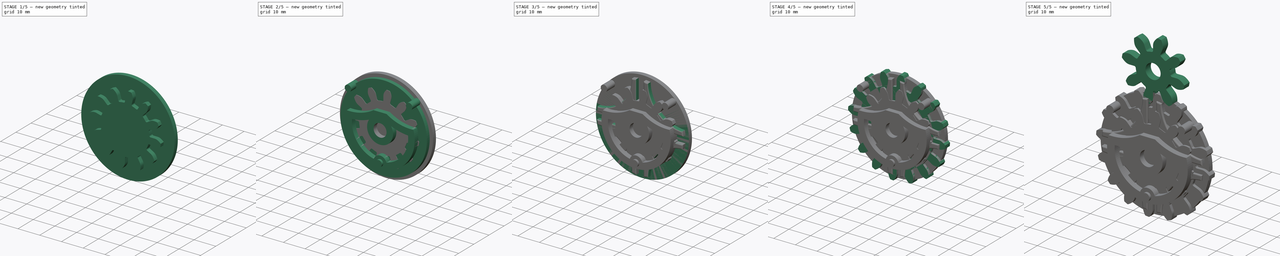
[diagram: build sequence overview — one tinted view per stage of 5, left to right]
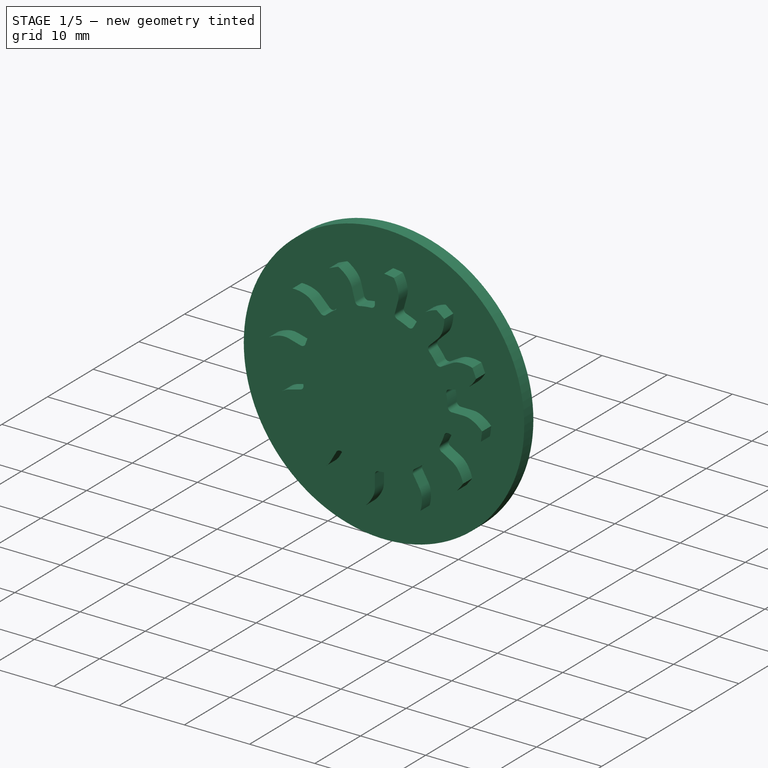
[diagram: stage 1 of 5 — iso view after this stage's code; geometry added in this stage tinted green]
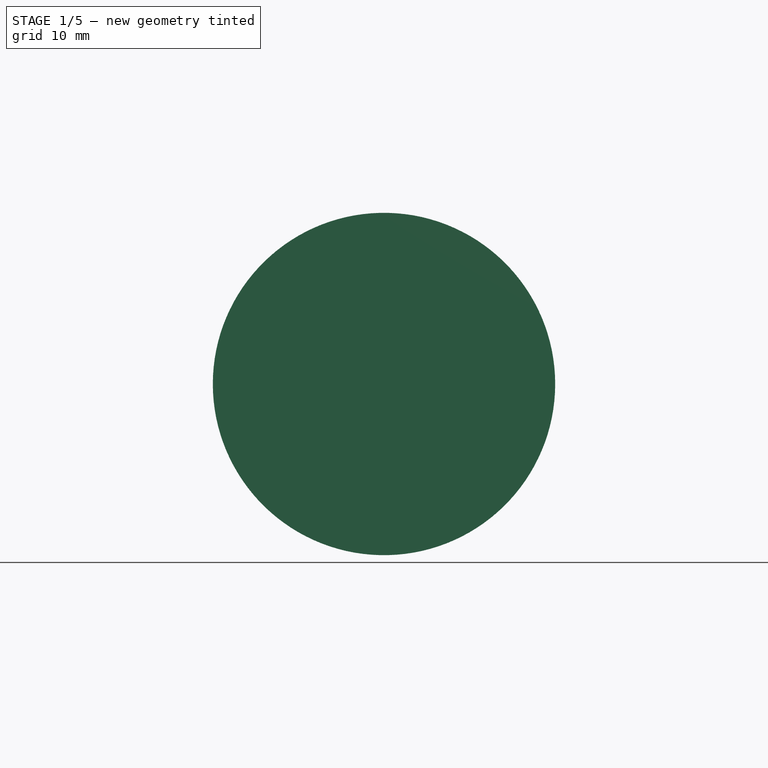
[diagram: stage 1 of 5 — front view after this stage's code; geometry added in this stage tinted green]
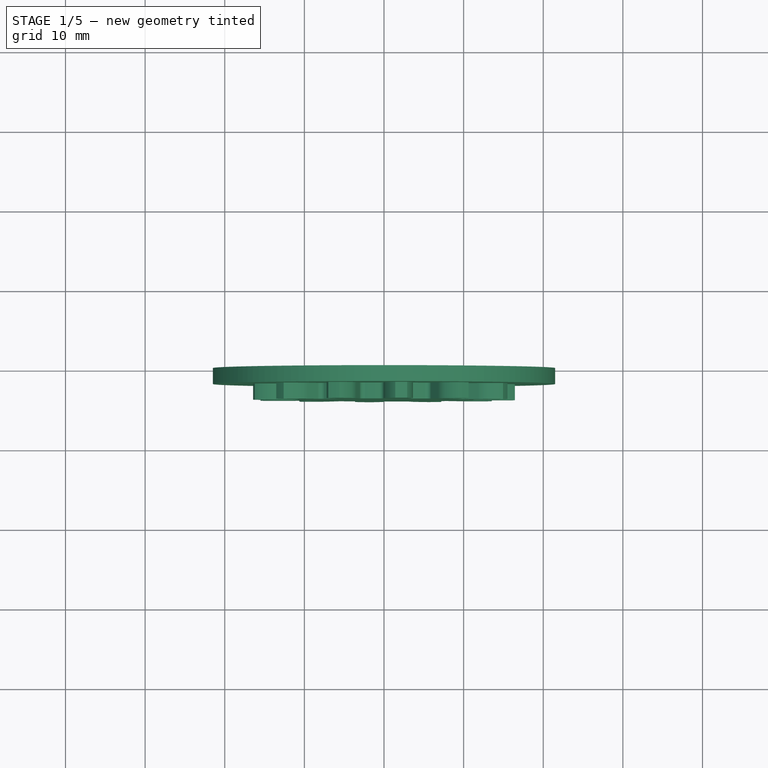
[diagram: stage 1 of 5 — top view after this stage's code; geometry added in this stage tinted green]
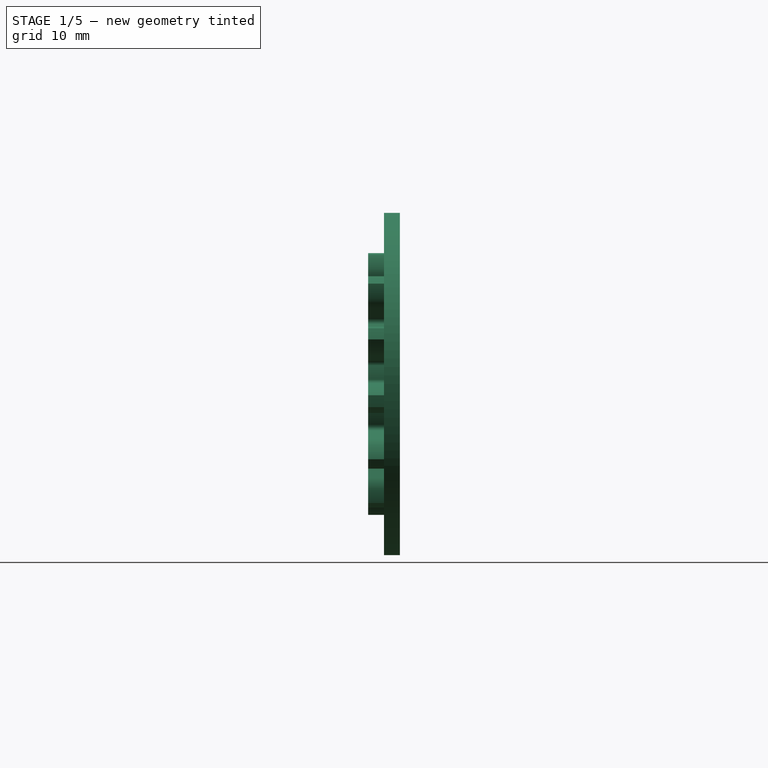
[diagram: stage 1 of 5 — right view after this stage's code; geometry added in this stage tinted green]
FCSTD DOCUMENT  (FreeCAD 1.0R39285 (Git))
Label: counter
License: All rights reserved
LicenseURL: https://en.wikipedia.org/wiki/All_rights_reserved
objects: Sketcher::SketchObject×25, PartDesign::Pocket×16, PartDesign::Pad×9, PartDesign::PolarPattern×8, PartDesign::Body×7, App::DocumentObjectGroup×3, PartDesign::Fillet×1, PartDesign::FeatureBase×1
note: 153 computed .brp shape members not serialized (recipe doc carries the construction recipe); baked Part::Feature solids carry a one-line shape summary decoded from their .brp

FEATURE [Sketcher::SketchObject] Sketch
  ArcFitTolerance = 1e-06
  AttachmentSupport = -> [XZ_Plane]
  FullyConstrained = true
  MakeInternals = false
  MapMode = 5
  Placement = pos=(0,0,0) rot=(1,0,0;1.5708rad)
  sketch-geometry (1):
    g0: Circle CenterX=0 CenterY=0 CenterZ=0 NormalX=0 NormalY=0 NormalZ=1 AngleXU=0 Radius=21.5
  constraints (2):
    c: Coincident(g0,g-1)
    c: Radius(g0) = 21.5
FEATURE [PartDesign::Pad] Pad  label="original"
  Direction = (0,-1,2e-16)
  Length = 2
  Length2 = 10
  Placement = pos=(0,0,0) rot=(1,0,0;1.5708rad)
  Profile = -> Sketch
  ReferenceAxis = -> Sketch [N_Axis]
  Refine = true
  Suppressed = false
  Type = 0
FEATURE [PartDesign::Body] Body  label="crank"
  AllowCompound = false
  Group = -> [Sketch,Pad,Sketch017,Sketch031,Pad015,Pad016,Sketch032,Pad017,Sketch035,Pocket018,Sketch036,Pocket019,Sketch038,Pocket022]
  Origin = -> Origin
  Placement = pos=(0,-3,0) rot=(0,0,1;0rad)
  Tip = -> Pocket022
FEATURE [App::DocumentObjectGroup] Group001  label="geneva_drive_0"
  Group = -> [Body001,Body,Body005]
FEATURE [Sketcher::SketchObject] Sketch039
  ArcFitTolerance = 1e-06
  AttachmentSupport = -> [XZ_Plane006]
  FullyConstrained = false
  MakeInternals = false
  MapMode = 5
  Placement = pos=(0,0,0) rot=(1,0,0;1.5708rad)
  sketch-geometry (34):
    g0: Circle [constr] CenterX=0 CenterY=0 CenterZ=0 NormalX=0 NormalY=0 NormalZ=1 AngleXU=0 Radius=11.192
    g1: Circle [constr] CenterX=0 CenterY=0 CenterZ=0 NormalX=0 NormalY=0 NormalZ=1 AngleXU=0 Radius=16.498
    g2: Circle [constr] CenterX=0 CenterY=0 CenterZ=0 NormalX=0 NormalY=0 NormalZ=1 AngleXU=0 Radius=14.14
    g3: Circle [constr] CenterX=0 CenterY=28.28 CenterZ=0 NormalX=0 NormalY=0 NormalZ=1 AngleXU=0 Radius=14.14
    g4: Circle [constr] CenterX=0 CenterY=28.28 CenterZ=0 NormalX=0 NormalY=0 NormalZ=1 AngleXU=0 Radius=16.498
    g5: Circle [constr] CenterX=0 CenterY=28.28 CenterZ=0 NormalX=0 NormalY=0 NormalZ=1 AngleXU=0 Radius=11.192
    g6: LineSegment [constr] StartX=14.14 StartY=0 StartZ=0 EndX=16.498 EndY=0 EndZ=0
    g7: LineSegment [constr] StartX=14.14 StartY=0 StartZ=0 EndX=11.192 EndY=0 EndZ=0
    g8: LineSegment [constr] StartX=0 StartY=0 StartZ=0 EndX=4.28559 EndY=15.9317 EndZ=0
    g9: GeomPoint [constr] X=3.67307 Y=13.6546 Z=0
    g10: GeomPoint [constr] X=0 Y=14.14 Z=0
    g11: LineSegment StartX=3.67307 StartY=13.6546 StartZ=0 EndX=3.06054 EndY=11.3776 EndZ=0
    g12: LineSegment StartX=0 StartY=14.14 StartZ=0 EndX=0 EndY=11.782 EndZ=0
    g13: ArcOfCircle CenterX=0 CenterY=0 CenterZ=0 NormalX=0 NormalY=0 NormalZ=1 AngleXU=0 Radius=16.498 StartAngle=1.39393 EndAngle=1.48488
    g14: ArcOfCircle CenterX=-0.605551 CenterY=11.782 CenterZ=0 NormalX=0 NormalY=0 NormalZ=1 AngleXU=0 Radius=0.605551 StartAngle=4.76374 EndAngle=6.28319
    g15: ArcOfCircle CenterX=3.64531 CenterY=11.2202 CenterZ=0 NormalX=0 NormalY=0 NormalZ=1 AngleXU=0 Radius=0.605551 StartAngle=2.87881 EndAngle=4.39826
    g16: ArcOfCircle CenterX=5.09125 CenterY=12.5872 CenterZ=0 NormalX=0 NormalY=0 NormalZ=1 AngleXU=0 Radius=5.32277 StartAngle=2.33303 EndAngle=2.84557
    g17: ArcOfCircle CenterX=-1.64677 CenterY=13.4777 CenterZ=0 NormalX=0 NormalY=0 NormalZ=1 AngleXU=0 Radius=5.32277 StartAngle=0.0332496 EndAngle=0.545781
    g18: LineSegment [constr] StartX=0 StartY=28.28 StartZ=0 EndX=-3.67307 EndY=14.6254 EndZ=0
    g19: ArcOfCircle [constr] CenterX=4.87056 CenterY=15.7627 CenterZ=0 NormalX=0 NormalY=0 NormalZ=1 AngleXU=0 Radius=8.61899 StartAngle=3.27393 EndAngle=3.58829
    g20: ArcOfCircle [constr] CenterX=-5.09125 CenterY=15.6928 CenterZ=0 NormalX=0 NormalY=0 NormalZ=1 AngleXU=0 Radius=5.32277 StartAngle=5.47463 EndAngle=5.98716
    g21: LineSegment [constr] StartX=2.15919 StartY=16.3389 StartZ=0 EndX=0 EndY=0 EndZ=0
    g22: GeomPoint [constr] X=1.83653 Y=13.8973 Z=0
    g23: LineSegment [constr] StartX=-2.15919 StartY=11.9411 StartZ=0 EndX=0 EndY=28.28 EndZ=0
    g24: GeomPoint [constr] X=-1.83653 Y=14.3827 Z=0
    g25: LineSegment StartX=4.29523 StartY=10.335 StartZ=0 EndX=8.13301 EndY=19.5692 EndZ=0
    g26: LineSegment StartX=-1.46313 StartY=11.096 StartZ=0 EndX=-2.77043 EndY=21.0101 EndZ=0
    g27: LineSegment [constr] StartX=-1.46313 StartY=11.096 StartZ=0 EndX=2e-16 EndY=0 EndZ=0
    g28: LineSegment [constr] StartX=0 StartY=0 StartZ=0 EndX=4.29523 EndY=10.335 EndZ=0
    g29: ArcOfCircle CenterX=0 CenterY=0 CenterZ=0 NormalX=0 NormalY=0 NormalZ=1 AngleXU=0 Radius=21.192 StartAngle=1.17691 EndAngle=1.7019
    g30: ArcOfCircle CenterX=0 CenterY=0 CenterZ=0 NormalX=0 NormalY=0 NormalZ=1 AngleXU=0 Radius=11.192 StartAngle=1.62215 EndAngle=1.7019
    g31: ArcOfCircle CenterX=-0.452454 CenterY=-1.22425 CenterZ=0 NormalX=0 NormalY=0 NormalZ=1 AngleXU=0 Radius=12.4963 StartAngle=1.18108 EndAngle=1.2525
    g32: GeomPoint X=5.42661 Y=13.0572 Z=0
    g33: GeomPoint X=-1.84852 Y=14.0187 Z=0
  constraints (87):
    c: Coincident(g0,g-1)
    c: Coincident(g1,g0)
    c: Coincident(g2,g0)
    c: PointOnObject(g3,g-2)
    c: Coincident(g4,g3)
    c: Coincident(g5,g3)
    c: DistanceY(g0,g3) = 28.28
    c: Diameter(g2) = 28.28
    c: PointOnObject(g6,g2)
    c: PointOnObject(g6,g1)
    c: Horizontal(g6)
    c: Coincident(g7,g6)
    c: PointOnObject(g7,g0)
    c: Horizontal(g7)
    c: PointOnObject(g7,g-1)
    c: DistanceX(g6,g6) = 2.358
    c: DistanceX(g7,g7) = 2.948
    c: Equal(g5,g0)
    c: Equal(g3,g2)
    c: Equal(g4,g1)
    c: Coincident(g8,g0)
    c: PointOnObject(g8,g1)
    c: PointOnObject(g9,g2)
    c: PointOnObject(g10,g2)
    c: PointOnObject(g9,g8)
    c: Distance(g9,g10) = 3.705
    c: Coincident(g11,g9)
    c: PointOnObject(g11,g8)
    c: Coincident(g12,g10)
    c: Coincident(g13,g0)
    c: Distance(g13,g13) = 1.5
    c: Tangent(g14,g0) = 1.5708
    c: Tangent(g14,g12) = 1.5708
    c: PointOnObject(g12,g4)
    c: Coincident(g15,g11)
    c: Tangent(g15,g0) = 1.5708
    c: Tangent(g15,g8)
    c: Equal(g15,g14)
    c: PointOnObject(g13,g1)
    c: Coincident(g16,g13)
    c: Coincident(g16,g10)
    c: Coincident(g17,g13)
    c: Coincident(g17,g9)
    c: Vertical(g12)
    c: PointOnObject(g10,g-2)
    c: PointOnObject(g18,g3)
    c: Distance(g18,g10) = 3.705
    c: Coincident(g18,g3)
    c: Coincident(g19,g18)
    c: PointOnObject(g19,g4)
    c: Coincident(g20,g10)
    c: PointOnObject(g20,g4)
    c: Distance(g20,g19) = 1.5
    c: Tangent(g20,g16)
    c: Equal(g16,g17)
    c: Symmetric(g13,g13,g21)
    c: Coincident(g0,g21)
    c: PointOnObject(g22,g21)
    c: Symmetric(g10,g9,g22)
    c: Coincident(g23,g3)
    c: Symmetric(g19,g20,g23)
    c: Symmetric(g18,g10,g24)
    c: PointOnObject(g24,g23)
    c: PointOnObject(g16,g4)
    c: PointOnObject(g19,g1)
    c: PointOnObject(g25,g0)
    c: Coincident(g27,g26)
    c: Coincident(g27,g0)
    c: Coincident(g28,g0)
    c: Coincident(g28,g25)
    c: Parallel(g28,g25)
    c: Parallel(g26,g27)
    c: Coincident(g29,g0)
    c: Coincident(g29,g26)
    c: Coincident(g29,g25)
    c: Coincident(g30,g0)
    c: Coincident(g30,g14)
    c: Coincident(g30,g26)
    c: Coincident(g31,g15)
    c: Coincident(g31,g25)
    c: PointOnObject(g32,g25)
    c: PointOnObject(g33,g26)
    c: PointOnObject(g33,g2)
    c: PointOnObject(g32,g2)
    c: Distance(g9,g32) = 1.8525
    c: Distance(g33,g10) = 1.8525
    c: Distance(g25) = 10
FEATURE [Sketcher::SketchObject] Sketch040
  ArcFitTolerance = 1e-06
  AttachmentSupport = -> [XZ_Plane006]
  FullyConstrained = true
  MakeInternals = false
  MapMode = 5
  Placement = pos=(0,0,0) rot=(1,0,0;1.5708rad)
  sketch-geometry (1):
    g0: Circle CenterX=0 CenterY=0 CenterZ=0 NormalX=0 NormalY=0 NormalZ=1 AngleXU=0 Radius=16.498
  constraints (2):
    c: Coincident(g0,g-1)
    c: Diameter(g0) = 32.996
FEATURE [PartDesign::Pad] Pad019
  Direction = (0,-1,2e-16)
  Length = 4
  Length2 = 10
  Placement = pos=(0,0,0) rot=(1,0,0;1.5708rad)
  Profile = -> Sketch040
  ReferenceAxis = -> Sketch040 [N_Axis]
  Refine = true
  Suppressed = false
  Type = 0
FEATURE [PartDesign::Pocket] Pocket023
  BaseFeature = -> Pad019
  Direction = (0,1,-2e-16)
  Length = 5
  Length2 = 5
  Placement = pos=(0,0,0) rot=(1,0,0;1.5708rad)
  Profile = -> Sketch039
  ReferenceAxis = -> Sketch039 [N_Axis]
  Refine = true
  Reversed = true
  Suppressed = false
  Type = 1
FEATURE [PartDesign::PolarPattern] PolarPattern007
  Angle = 360
  Axis = -> Sketch039 [N_Axis]
  BaseFeature = -> Pocket023
  Mode = 0
  Occurrences = 12
  Offset = 120
  Originals = -> [Pocket023]
  Placement = pos=(0,0,0) rot=(1,0,0;1.5708rad)
  Refine = true
  Suppressed = false
  TransformMode = 0
FEATURE [Sketcher::SketchObject] Sketch041
  ArcFitTolerance = 1e-06
  AttachmentSupport = -> [PolarPattern007]
  ExternalGeometry = -> [PolarPattern007]
  FullyConstrained = true
  MakeInternals = false
  MapMode = 5
  Placement = pos=(0,-4,0) rot=(1,0,0;1.5708rad)
  sketch-geometry (6):
    g0: ArcOfCircle CenterX=3 CenterY=13.5981 CenterZ=0 NormalX=0 NormalY=0 NormalZ=1 AngleXU=0 Radius=3 StartAngle=2.69131 EndAngle=3.14159
    g1: ArcOfCircle CenterX=0.635295 CenterY=13.9106 CenterZ=0 NormalX=0 NormalY=0 NormalZ=1 AngleXU=0 Radius=3 StartAngle=6.02041 EndAngle=6.47069
    g2: LineSegment StartX=3.58271 StartY=14.4699 StartZ=0 EndX=4.29959 EndY=13.7727 EndZ=0
    g3: LineSegment StartX=3.53231 StartY=13.1313 StartZ=0 EndX=4.29959 EndY=13.7727 EndZ=0
    g4: LineSegment StartX=0.299029 StartY=14.9038 StartZ=0 EndX=-0.574346 EndY=14.4168 EndZ=0
    g5: LineSegment StartX=0 StartY=13.5981 StartZ=0 EndX=-0.574346 EndY=14.4168 EndZ=0
  constraints (16):
    c: Equal(g0,g1)
    c: Tangent(g0,g-3) = -1.5708
    c: Tangent(g0,g-6) = -1.5708
    c: Diameter(g0) = 6
    c: Tangent(g1,g-4) = -1.5708
    c: Tangent(g1,g-5) = 1.5708
    c: Coincident(g2,g1)
    c: Coincident(g3,g1)
    c: Coincident(g3,g2)
    c: Coincident(g4,g0)
    c: Coincident(g5,g0)
    c: Coincident(g5,g4)
    c: Equal(g5,g4)
    c: Equal(g4,g3)
    c: Equal(g3,g2)
    c: Distance(g2) = 1
FEATURE [PartDesign::Pocket] Pocket024
  BaseFeature = -> PolarPattern007
  Direction = (0,1,-2e-16)
  Length = 5
  Length2 = 5
  Placement = pos=(0,0,0) rot=(1,0,0;1.5708rad)
  Profile = -> Sketch041
  ReferenceAxis = -> Sketch041 [N_Axis]
  Refine = true
  Suppressed = false
  Type = 1
FEATURE [PartDesign::PolarPattern] PolarPattern008
  Angle = 360
  Axis = -> Sketch041 [N_Axis]
  BaseFeature = -> Pocket024
  Mode = 0
  Occurrences = 12
  Offset = 120
  Originals = -> [Pocket024]
  Placement = pos=(0,0,0) rot=(1,0,0;1.5708rad)
  Refine = true
  Suppressed = false
  TransformMode = 0
FEATURE [PartDesign::Body] Body006  label="12_tooth_gear"
  AllowCompound = false
  Group = -> [Sketch039,Sketch040,Pad019,Pocket023,PolarPattern007,Sketch041,Pocket024,PolarPattern008]
  Origin = -> Origin006
  Tip = -> PolarPattern008
FEATURE [PartDesign::FeatureBase] Clone
  BaseFeature = -> Body006
  Suppressed = false
FEATURE [PartDesign::Body] Body007  label="12_tooth_gear_clone"
  AllowCompound = false
  Group = -> [Clone]
  Origin = -> Origin007
  Placement = pos=(0,0,28.28) rot=(0,0,1;0rad)
  Tip = -> Clone
FEATURE [App::DocumentObjectGroup] Group002  label="1:1 ratio"
  Group = -> [Body006,Body007]
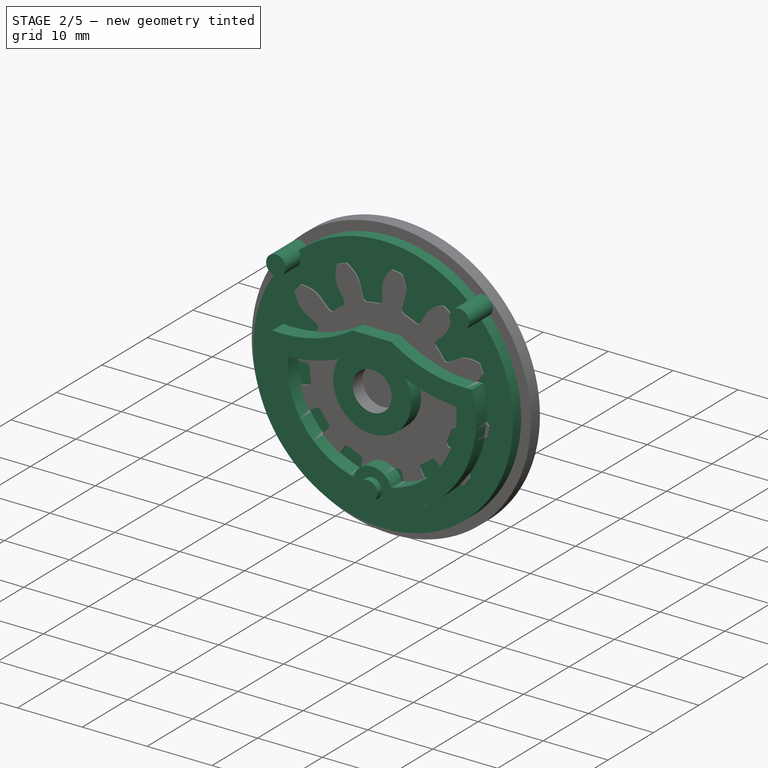
[diagram: stage 2 of 5 — iso view after this stage's code; geometry added in this stage tinted green]
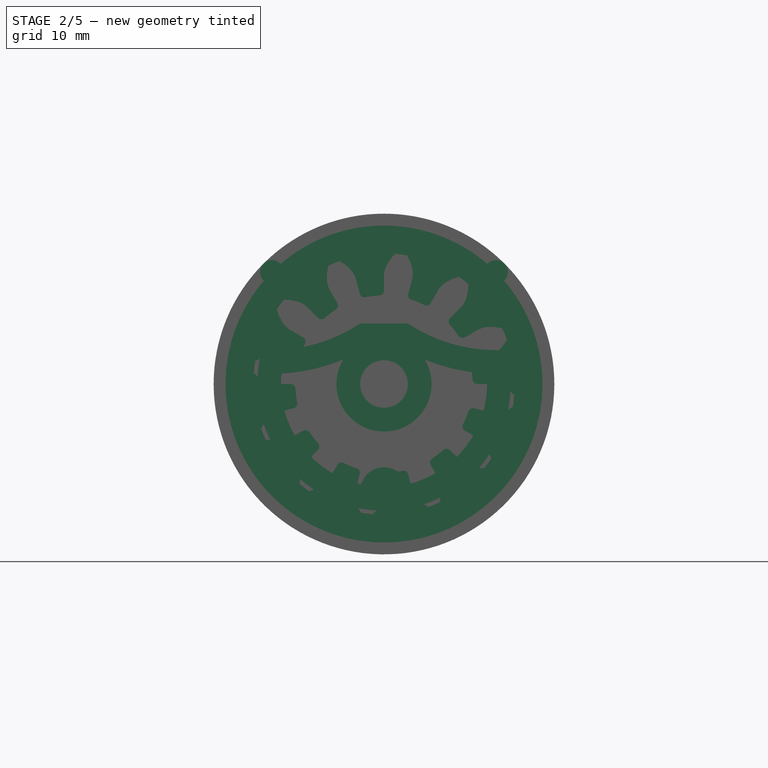
[diagram: stage 2 of 5 — front view after this stage's code; geometry added in this stage tinted green]
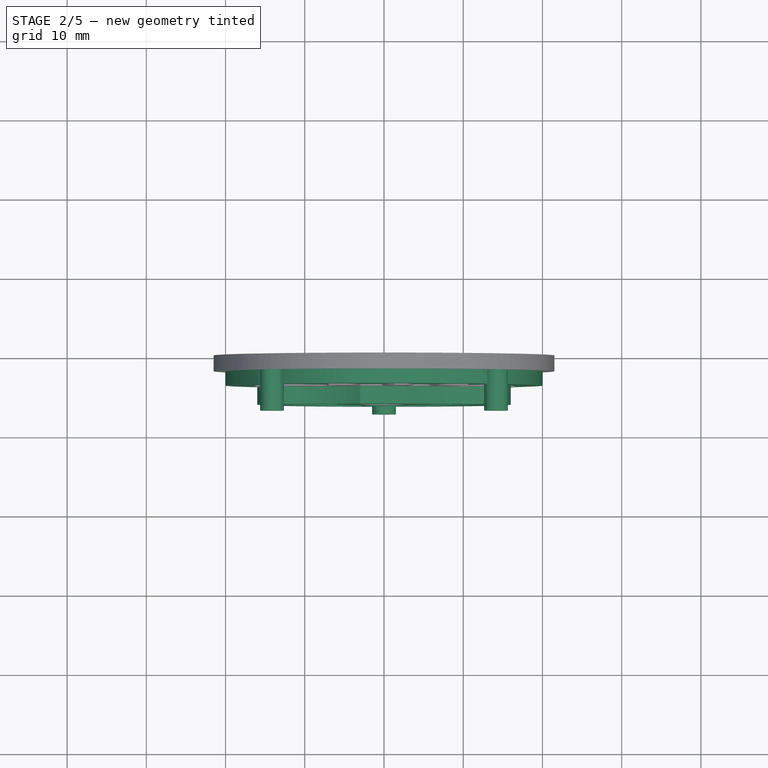
[diagram: stage 2 of 5 — top view after this stage's code; geometry added in this stage tinted green]
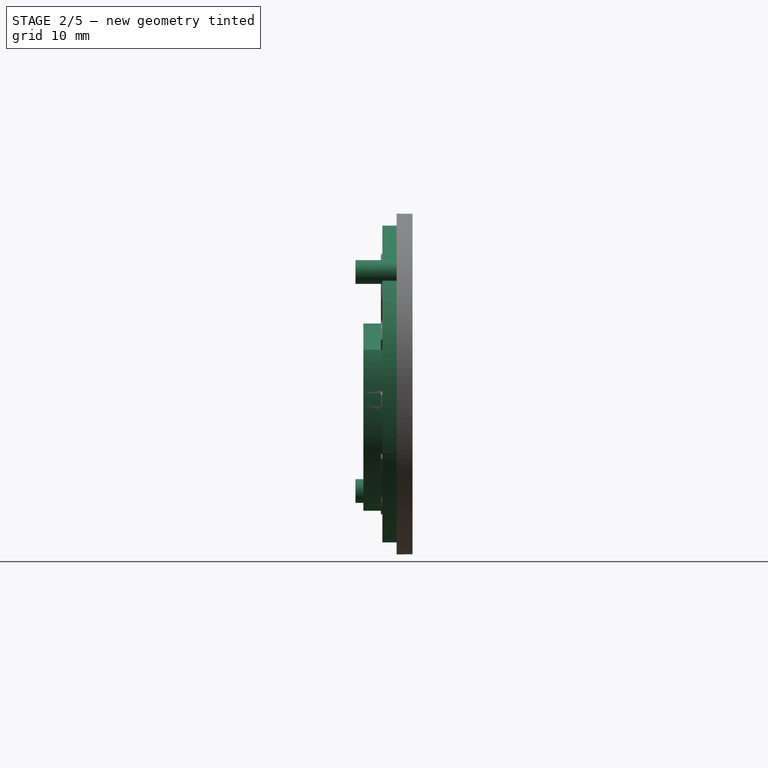
[diagram: stage 2 of 5 — right view after this stage's code; geometry added in this stage tinted green]
FEATURE [PartDesign::Body] Body003  label="8_tooth_pinion"
  AllowCompound = false
  Group = -> [Sketch005,Sketch006,Pad005,Pocket001,PolarPattern001,Sketch007,Pocket002,PolarPattern002,Sketch009,Pocket004]
  Origin = -> Origin003
  Placement = pos=(0,-9,28.28) rot=(0,0,1;0rad)
  Tip = -> Pocket004
FEATURE [Sketcher::SketchObject] Sketch016
  ArcFitTolerance = 1e-06
  AttachmentSupport = -> [XZ_Plane001]
  FullyConstrained = true
  MakeInternals = false
  MapMode = 5
  Placement = pos=(0,0,0) rot=(1,0,0;1.5708rad)
  sketch-geometry (1):
    g0: Circle CenterX=0 CenterY=0 CenterZ=0 NormalX=0 NormalY=0 NormalZ=1 AngleXU=0 Radius=20
  constraints (2):
    c: Coincident(g0,g-1)
    c: Radius(g0) = 20
FEATURE [PartDesign::Pad] Pad009
  Direction = (0,-1,2e-16)
  Length = 3.8
  Length2 = 10
  Placement = pos=(0,0,0) rot=(1,0,0;1.5708rad)
  Profile = -> Sketch016
  ReferenceAxis = -> Sketch016 [N_Axis]
  Refine = true
  Suppressed = false
  Type = 0
FEATURE [PartDesign::Body] Body002  label="16_tooth_gear"
  AllowCompound = false
  Group = -> [Sketch003,Sketch004,Pad004,Pocket,PolarPattern,Sketch023,Pocket014,PolarPattern005,Sketch024,Pocket015,Sketch025,Pocket016,PolarPattern006]
  Origin = -> Origin002
  Placement = pos=(3e-15,-9,28.28) rot=(0,0,1;0rad)
  Tip = -> PolarPattern006
FEATURE [App::DocumentObjectGroup] Group  label="1:2 ratio"
  Group = -> [Body002,Body003]
FEATURE [Sketcher::SketchObject] Sketch031
  ArcFitTolerance = 1e-06
  AttachmentSupport = -> [Pad]
  FullyConstrained = true
  MakeInternals = false
  MapMode = 5
  Placement = pos=(0,-2,0) rot=(1,0,0;1.5708rad)
  sketch-geometry (4):
    g0: Circle CenterX=-14.1421 CenterY=14.1421 CenterZ=0 NormalX=0 NormalY=0 NormalZ=1 AngleXU=0 Radius=1.5
    g1: Circle CenterX=14.1421 CenterY=14.1421 CenterZ=0 NormalX=0 NormalY=0 NormalZ=1 AngleXU=0 Radius=1.5
    g2: LineSegment [constr] StartX=-14.1421 StartY=14.1421 StartZ=0 EndX=0 EndY=-1.8e-15 EndZ=0
    g3: LineSegment [constr] StartX=0 StartY=-1.8e-15 StartZ=0 EndX=14.1421 EndY=14.1421 EndZ=0
  constraints (10):
    c: Equal(g0,g1)
    c: Diameter(g0) = 3
    c: Coincident(g2,g0)
    c: Coincident(g2,g-1)
    c: Coincident(g3,g2)
    c: Coincident(g3,g1)
    c: Perpendicular(g3,g2)
    c: Angle(g-2,g2) = 0.785398
    c: Distance(g2) = 20
    c: Equal(g3,g2)
FEATURE [PartDesign::Pad] Pad015  label="main_pins"
  BaseFeature = -> Pad
  Direction = (0,-1,2e-16)
  Length = 5.2
  Length2 = 10
  Placement = pos=(0,0,0) rot=(1,0,0;1.5708rad)
  Profile = -> Sketch031
  ReferenceAxis = -> Sketch031 [N_Axis]
  Refine = true
  Suppressed = false
  Type = 0
FEATURE [PartDesign::Pad] Pad016  label="locking_ring"
  BaseFeature = -> Pad015
  Direction = (0,-1,2e-16)
  Length = 4.2
  Length2 = 10
  Placement = pos=(0,0,0) rot=(1,0,0;1.5708rad)
  Profile = -> Sketch017
  ReferenceAxis = -> Sketch017 [N_Axis]
  Refine = true
  Suppressed = false
  Type = 0
FEATURE [Sketcher::SketchObject] Sketch032
  ArcFitTolerance = 1e-06
  AttachmentSupport = -> [Pad016]
  FullyConstrained = true
  MakeInternals = false
  MapMode = 5
  Placement = pos=(0,-6.2,1.4e-15) rot=(1,0,0;1.5708rad)
  sketch-geometry (2):
    g0: Circle CenterX=0 CenterY=-13.5 CenterZ=0 NormalX=0 NormalY=0 NormalZ=1 AngleXU=0 Radius=1.5
    g1: GeomPoint X=0 Y=-15 Z=0
  constraints (5):
    c: PointOnObject(g0,g-2)
    c: Diameter(g0) = 3
    c: PointOnObject(g1,g0)
    c: PointOnObject(g1,g-2)
    c: DistanceY(g1,g-1) = 15
FEATURE [PartDesign::Pad] Pad017  label="alignment_pin"
  BaseFeature = -> Pad016
  Direction = (0,-1,2e-16)
  Length = 1
  Length2 = 10
  Placement = pos=(0,0,0) rot=(1,0,0;1.5708rad)
  Profile = -> Sketch032
  ReferenceAxis = -> Sketch032 [N_Axis]
  Refine = true
  Suppressed = false
  Type = 0
FEATURE [Sketcher::SketchObject] Sketch034
  ArcFitTolerance = 1e-06
  AttachmentOffset = pos=(0,0,-2) rot=(0,0,1;0rad)
  AttachmentSupport = -> [Pad018]
  FullyConstrained = true
  MakeInternals = false
  MapMode = 5
  Placement = pos=(0,0,-4e-16) rot=(1,0,0;1.5708rad)
  sketch-geometry (14):
    g0: ArcOfCircle CenterX=-14.1421 CenterY=14.1421 CenterZ=0 NormalX=0 NormalY=0 NormalZ=1 AngleXU=0 Radius=1.5 StartAngle=3.16155 EndAngle=7.83403
    g1: Circle CenterX=0 CenterY=-13.5 CenterZ=0 NormalX=0 NormalY=0 NormalZ=1 AngleXU=0 Radius=1.5
    g2: GeomPoint X=0 Y=-15 Z=0
    g3: LineSegment [constr] StartX=-14.1421 StartY=14.1421 StartZ=0 EndX=0 EndY=0 EndZ=0
    g4: LineSegment [constr] StartX=0 StartY=0 StartZ=0 EndX=14.1421 EndY=14.1421 EndZ=0
    g5: LineSegment [constr] StartX=-14.1421 StartY=14.1421 StartZ=0 EndX=-15.2028 EndY=15.2028 EndZ=0
    g6: Circle [constr] CenterX=0 CenterY=0 CenterZ=0 NormalX=0 NormalY=0 NormalZ=1 AngleXU=0 Radius=21.5
    g7: ArcOfCircle CenterX=-15.8918 CenterY=14.1072 CenterZ=0 NormalX=0 NormalY=0 NormalZ=1 AngleXU=0 Radius=0.25 StartAngle=0.0199543 EndAngle=2.41561
    g8: ArcOfCircle CenterX=-14.1072 CenterY=15.8918 CenterZ=0 NormalX=0 NormalY=0 NormalZ=1 AngleXU=0 Radius=0.25 StartAngle=2.29678 EndAngle=4.69243
    g9: ArcOfCircle CenterX=14.1421 CenterY=14.1421 CenterZ=0 NormalX=0 NormalY=0 NormalZ=1 AngleXU=0 Radius=1.5 StartAngle=1.59075 EndAngle=6.26323
    g10: ArcOfCircle CenterX=14.1072 CenterY=15.8918 CenterZ=0 NormalX=0 NormalY=0 NormalZ=1 AngleXU=0 Radius=0.25 StartAngle=4.73234 EndAngle=7.128
    g11: ArcOfCircle CenterX=15.8918 CenterY=14.1072 CenterZ=0 NormalX=0 NormalY=0 NormalZ=1 AngleXU=0 Radius=0.25 StartAngle=0.725981 EndAngle=3.12164
    g12: ArcOfCircle CenterX=0 CenterY=0 CenterZ=0 NormalX=0 NormalY=0 NormalZ=1 AngleXU=0 Radius=21.5 StartAngle=2.29678 EndAngle=2.41561
    g13: ArcOfCircle CenterX=0 CenterY=0 CenterZ=0 NormalX=0 NormalY=0 NormalZ=1 AngleXU=0 Radius=21.5 StartAngle=0.725981 EndAngle=0.844816
  constraints (38):
    c: PointOnObject(g1,g-2)
    c: PointOnObject(g2,g1)
    c: PointOnObject(g2,g-2)
    c: DistanceY(g2,g-1) = 15
    c: Equal(g1,g0)
    c: Diameter(g0) = 3
    c: Coincident(g3,g0)
    c: Coincident(g3,g-1)
    c: Coincident(g4,g3)
    c: Perpendicular(g4,g3)
    c: Angle(g4,g-2) = 0.785398
    c: Distance(g3) = 20
    c: Equal(g3,g4)
    c: Coincident(g5,g0)
    c: Parallel(g5,g3)
    c: PointOnObject(g5,g0)
    c: Coincident(g6,g3)
    c: Radius(g6) = 21.5
    c: Tangent(g8,g0) = 1.5708
    c: Tangent(g7,g0) = 1.5708
    c: Equal(g7,g8)
    c: Diameter(g7) = 0.5
    c: Tangent(g7,g6) = -1.5708
    c: Tangent(g8,g6) = -1.5708
    c: Coincident(g9,g4)
    c: Equal(g9,g0)
    c: Tangent(g11,g9) = 1.5708
    c: Tangent(g10,g9) = 1.5708
    c: Tangent(g10,g6) = -1.5708
    c: Tangent(g11,g6) = -1.5708
    c: Diameter(g10) = 0.5
    c: Equal(g11,g10)
    c: Coincident(g12,g3)
    c: Coincident(g12,g7)
    c: Horizontal(g12,g8)
    c: Coincident(g13,g3)
    c: Coincident(g13,g11)
    c: Horizontal(g13,g10)
FEATURE [Sketcher::SketchObject] Sketch035
  ArcFitTolerance = 1e-06
  AttachmentSupport = -> [Pad017]
  ExternalGeometry = -> [Pad017]
  FullyConstrained = true
  MakeInternals = false
  MapMode = 5
  Placement = pos=(0,-6.2,1.4e-15) rot=(1,0,0;1.5708rad)
  sketch-geometry (8):
    g0: ArcOfCircle CenterX=-14.1421 CenterY=24.49 CenterZ=0 NormalX=0 NormalY=0 NormalZ=1 AngleXU=0 Radius=23.2 StartAngle=4.76455 EndAngle=5.11135
    g1: ArcOfCircle CenterX=14.1421 CenterY=24.49 CenterZ=0 NormalX=0 NormalY=0 NormalZ=1 AngleXU=0 Radius=23.2 StartAngle=4.31343 EndAngle=4.66023
    g2: LineSegment [constr] StartX=-2.8846 StartY=-12.6759 StartZ=0 EndX=-3.55027 EndY=-15.6011 EndZ=0
    g3: ArcOfCircle CenterX=0 CenterY=-13.5 CenterZ=0 NormalX=0 NormalY=0 NormalZ=1 AngleXU=0 Radius=3 StartAngle=0.278269 EndAngle=2.86332
    g4: ArcOfCircle CenterX=0 CenterY=0 CenterZ=0 NormalX=0 NormalY=0 NormalZ=1 AngleXU=0 Radius=13 StartAngle=3.03976 EndAngle=4.48863
    g5: ArcOfCircle CenterX=0 CenterY=0 CenterZ=0 NormalX=0 NormalY=0 NormalZ=1 AngleXU=0 Radius=13 StartAngle=4.93614 EndAngle=6.38502
    g6: LineSegment [constr] StartX=-5.12989 StartY=3.11195 StartZ=0 EndX=-6.29526 EndY=5.87635 EndZ=0
    g7: ArcOfCircle CenterX=0 CenterY=0 CenterZ=0 NormalX=0 NormalY=0 NormalZ=1 AngleXU=0 Radius=6 StartAngle=2.59631 EndAngle=6.82847
  constraints (24):
    c: Coincident(g3,g-4)
    c: Diameter(g3) = 6
    c: Coincident(g4,g-1)
    c: Coincident(g4,g0)
    c: Coincident(g4,g3)
    c: Coincident(g5,g4)
    c: Coincident(g5,g1)
    c: Coincident(g5,g3)
    c: PointOnObject(g2,g-3)
    c: Coincident(g2,g3)
    c: Perpendicular(g4,g2)
    c: Distance(g2) = 3
    c: PointOnObject(g3,g4)
    c: Perpendicular(g0,g6)
    c: Distance(g6) = 3
    c: Coincident(g7,g4)
    c: Diameter(g7) = 12
    c: Coincident(g0,g7)
    c: Coincident(g1,g7)
    c: Horizontal(g0,g1)
    c: Coincident(g6,g0)
    c: PointOnObject(g6,g-5)
    c: Coincident(g0,g-5)
    c: Symmetric(g0,g1,g-2)
FEATURE [PartDesign::Pocket] Pocket018  label="useless_space"
  BaseFeature = -> Pad017
  Direction = (0,1,-2e-16)
  Length = 4
  Length2 = 5
  Placement = pos=(0,0,0) rot=(1,0,0;1.5708rad)
  Profile = -> Sketch035
  ReferenceAxis = -> Sketch035 [N_Axis]
  Refine = true
  Suppressed = false
  Type = 0
FEATURE [Sketcher::SketchObject] Sketch036
  ArcFitTolerance = 1e-06
  AttachmentSupport = -> [Pocket018]
  FullyConstrained = true
  MakeInternals = false
  MapMode = 5
  Placement = pos=(0,0,0) rot=(-1,0,0;1.5708rad)
  sketch-geometry (1):
    g0: Circle CenterX=0 CenterY=0 CenterZ=0 NormalX=0 NormalY=0 NormalZ=1 AngleXU=0 Radius=3
  constraints (2):
    c: Coincident(g0,g-1)
    c: Diameter(g0) = 6
FEATURE [PartDesign::Pocket] Pocket019  label="main_hole"
  BaseFeature = -> Pocket018
  Direction = (0,-1,-2e-16)
  Length = 5
  Length2 = 5
  Placement = pos=(0,0,0) rot=(1,0,0;1.5708rad)
  Profile = -> Sketch036
  ReferenceAxis = -> Sketch036 [N_Axis]
  Refine = true
  Suppressed = false
  Type = 1
FEATURE [PartDesign::Body] Body001  label="geneva"
  AllowCompound = false
  Group = -> [Sketch002,Sketch016,Pad009,Pocket008,PolarPattern004,Sketch020,Pocket012,Fillet]
  Origin = -> Origin001
  Placement = pos=(0,-5.2,28.28) rot=(0,1,0;5.49779rad)
  Tip = -> Fillet
FEATURE [Sketcher::SketchObject] Sketch038
  ArcFitTolerance = 1e-06
  AttachmentSupport = -> [Pad016]
  FullyConstrained = true
  MakeInternals = false
  MapMode = 5
  Placement = pos=(0,0,0) rot=(-1,0,0;1.5708rad)
  sketch-geometry (1):
    g0: Circle CenterX=0 CenterY=0 CenterZ=0 NormalX=0 NormalY=0 NormalZ=1 AngleXU=0 Radius=3
  constraints (2):
    c: Coincident(g0,g-1)
    c: Diameter(g0) = 6
FEATURE [PartDesign::Pocket] Pocket022
  BaseFeature = -> Pocket019
  Direction = (0,-1,-2e-16)
  Length = 5
  Length2 = 5
  Placement = pos=(0,0,0) rot=(1,0,0;1.5708rad)
  Profile = -> Sketch038
  ReferenceAxis = -> Sketch038 [N_Axis]
  Refine = true
  Suppressed = false
  Type = 1
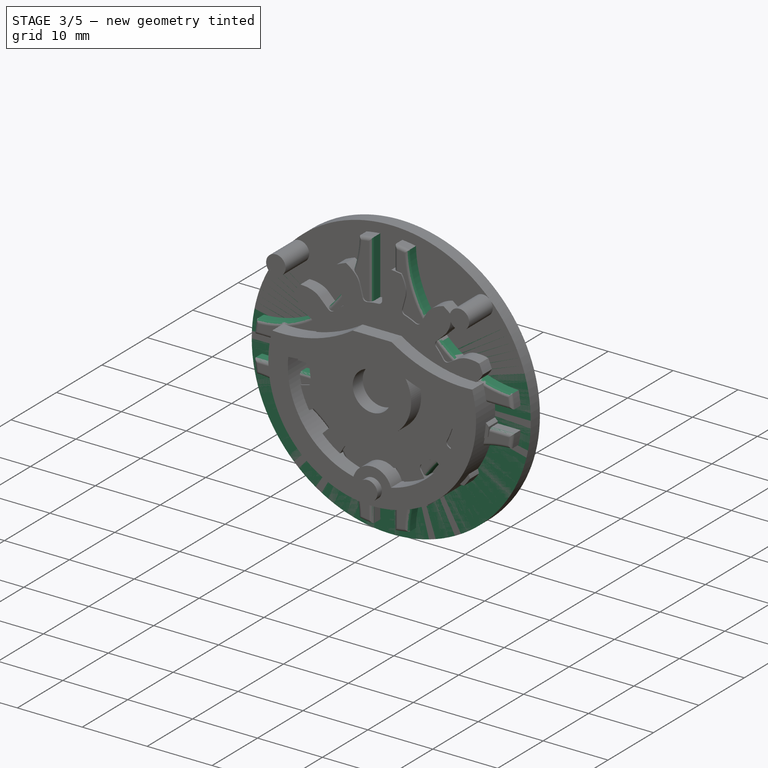
[diagram: stage 3 of 5 — iso view after this stage's code; geometry added in this stage tinted green]
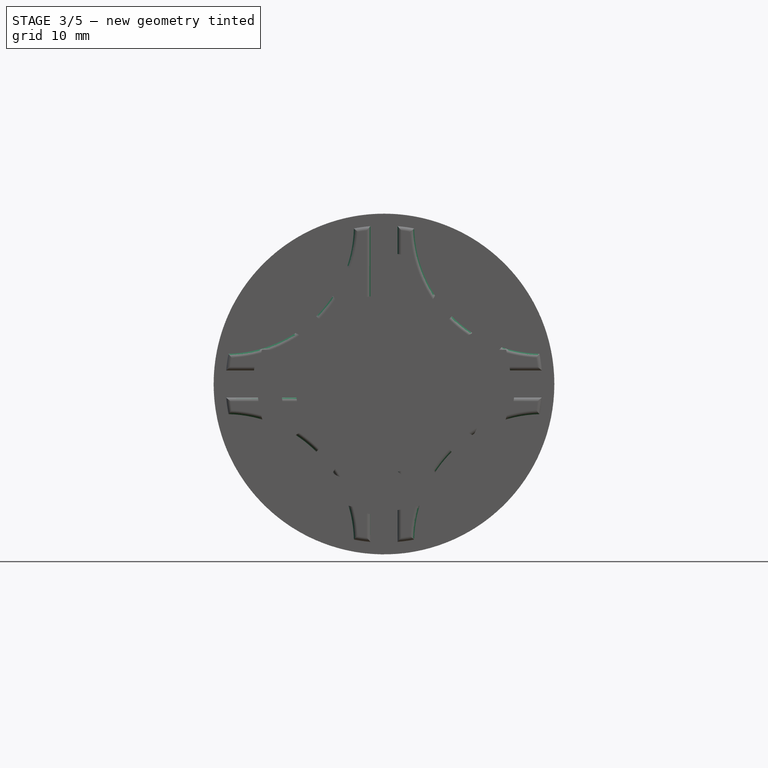
[diagram: stage 3 of 5 — front view after this stage's code; geometry added in this stage tinted green]
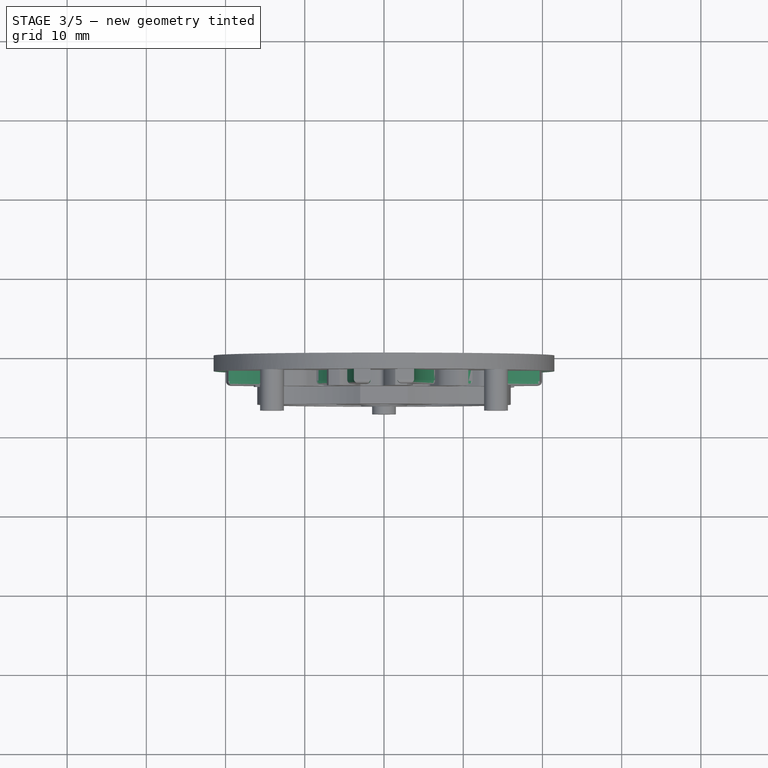
[diagram: stage 3 of 5 — top view after this stage's code; geometry added in this stage tinted green]
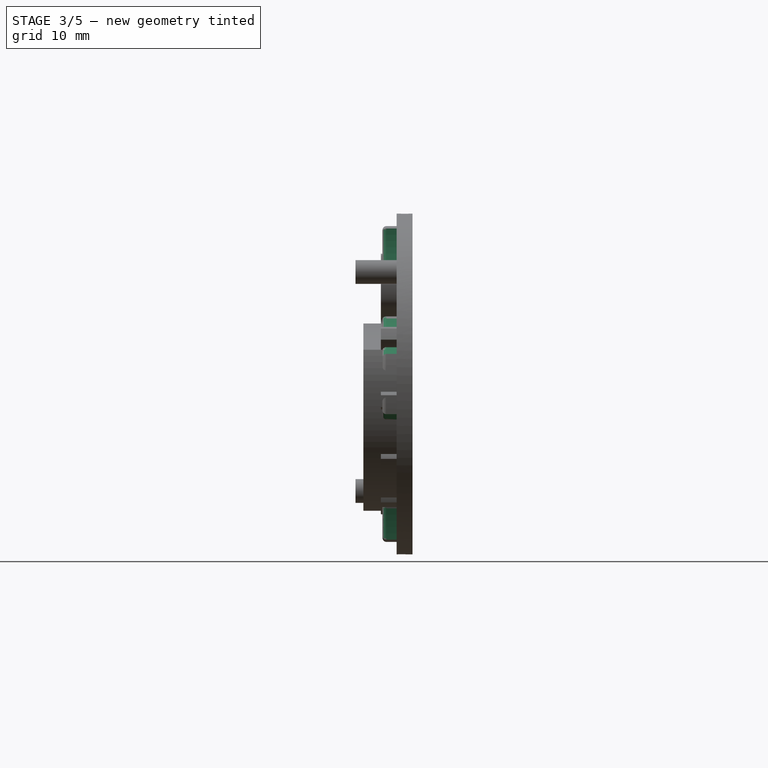
[diagram: stage 3 of 5 — right view after this stage's code; geometry added in this stage tinted green]
FEATURE [PartDesign::Pocket] Pocket008
  BaseFeature = -> Pad009
  Direction = (0,1,-2e-16)
  Length = 5
  Length2 = 5
  Midplane = true
  Placement = pos=(0,0,0) rot=(1,0,0;1.5708rad)
  Profile = -> Sketch002
  ReferenceAxis = -> Sketch002 [N_Axis]
  Refine = true
  Suppressed = false
  Type = 1
FEATURE [PartDesign::PolarPattern] PolarPattern004
  Angle = 360
  Axis = -> Sketch002 [N_Axis]
  BaseFeature = -> Pocket008
  Mode = 0
  Occurrences = 4
  Offset = 120
  Originals = -> [Pocket008]
  Placement = pos=(0,0,0) rot=(1,0,0;1.5708rad)
  Refine = true
  Suppressed = false
  TransformMode = 0
FEATURE [Sketcher::SketchObject] Sketch017
  ArcFitTolerance = 1e-06
  AttachmentSupport = -> [Pad]
  FullyConstrained = true
  MakeInternals = false
  MapMode = 5
  Placement = pos=(0,-2,0) rot=(1,0,0;1.5708rad)
  sketch-geometry (7):
    g0: LineSegment [constr] StartX=-14.1421 StartY=14.1421 StartZ=0 EndX=0 EndY=0 EndZ=0
    g1: ArcOfCircle CenterX=-14.1421 CenterY=24.49 CenterZ=0 NormalX=0 NormalY=0 NormalZ=1 AngleXU=0 Radius=20.2 StartAngle=4.64992 EndAngle=5.29666
    g2: GeomPoint X=-15.4031 Y=4.32936 Z=0
    g3: GeomPoint X=-3 Y=7.64085 Z=0
    g4: ArcOfCircle CenterX=14.1421 CenterY=24.49 CenterZ=0 NormalX=0 NormalY=0 NormalZ=1 AngleXU=0 Radius=20.2 StartAngle=4.12812 EndAngle=4.77486
    g5: LineSegment StartX=-3 StartY=7.64085 StartZ=0 EndX=3 EndY=7.64085 EndZ=0
    g6: ArcOfCircle CenterX=0 CenterY=0 CenterZ=0 NormalX=0 NormalY=0 NormalZ=1 AngleXU=0 Radius=16 StartAngle=2.86759 EndAngle=6.55719
  constraints (19):
    c: Coincident(g0,g-1)
    c: Angle(g-2,g0) = 0.785398
    c: Distance(g0) = 20
    c: Radius(g1) = 20.2
    c: Vertical(g0,g1)
    c: Distance(g1,g0) = 28.28
    c: Equal(g4,g1)
    c: Horizontal(g4,g3)
    c: Horizontal(g2,g4)
    c: Symmetric(g1,g4,g-2)
    c: DistanceX(g3,g4) = 6
    c: Coincident(g5,g3)
    c: Coincident(g5,g4)
    c: Coincident(g6,g0)
    c: Radius(g6) = 16
    c: Coincident(g6,g2)
    c: Horizontal(g6,g4)
    c: Coincident(g1,g5)
    c: Coincident(g1,g6)
FEATURE [Sketcher::SketchObject] Sketch020
  ArcFitTolerance = 1e-06
  AttachmentSupport = -> [XZ_Plane001]
  FullyConstrained = true
  MakeInternals = false
  MapMode = 5
  Placement = pos=(0,0,0) rot=(1,0,0;1.5708rad)
  sketch-geometry (1):
    g0: Circle CenterX=0 CenterY=0 CenterZ=0 NormalX=0 NormalY=0 NormalZ=1 AngleXU=0 Radius=3
  constraints (2):
    c: Coincident(g0,g-1)
    c: Diameter(g0) = 6
FEATURE [PartDesign::Pocket] Pocket012
  BaseFeature = -> PolarPattern004
  Direction = (0,1,-2e-16)
  Length = 5
  Length2 = 5
  Midplane = true
  Placement = pos=(0,0,0) rot=(1,0,0;1.5708rad)
  Profile = -> Sketch020
  ReferenceAxis = -> Sketch020 [N_Axis]
  Refine = true
  Suppressed = false
  Type = 1
FEATURE [Sketcher::SketchObject] Sketch033
  ArcFitTolerance = 1e-06
  AttachmentSupport = -> [XZ_Plane005]
  FullyConstrained = true
  MakeInternals = false
  MapMode = 5
  Placement = pos=(0,0,0) rot=(1,0,0;1.5708rad)
  sketch-geometry (1):
    g0: Circle CenterX=0 CenterY=0 CenterZ=0 NormalX=0 NormalY=0 NormalZ=1 AngleXU=0 Radius=21.5
  constraints (2):
    c: Coincident(g0,g-1)
    c: Radius(g0) = 21.5
FEATURE [PartDesign::Pad] Pad018  label="original001"
  Direction = (0,-1,2e-16)
  Length = 2
  Length2 = 10
  Placement = pos=(0,0,0) rot=(1,0,0;1.5708rad)
  Profile = -> Sketch033
  ReferenceAxis = -> Sketch033 [N_Axis]
  Refine = true
  Suppressed = false
  Type = 0
FEATURE [PartDesign::Pocket] Pocket020  label="position"
  BaseFeature = -> Pad018
  Direction = (0,1,-2e-16)
  Length = 1
  Length2 = 5
  Placement = pos=(0,0,0) rot=(1,0,0;1.5708rad)
  Profile = -> Sketch034
  ReferenceAxis = -> Sketch034 [N_Axis]
  Refine = true
  Reversed = true
  Suppressed = false
  Type = 0
FEATURE [Sketcher::SketchObject] Sketch037
  ArcFitTolerance = 1e-06
  AttachmentSupport = -> [Pocket020]
  FullyConstrained = true
  MakeInternals = false
  MapMode = 5
  Placement = pos=(0,-2,0) rot=(1,0,0;1.5708rad)
  sketch-geometry (1):
    g0: Circle CenterX=0 CenterY=0 CenterZ=0 NormalX=0 NormalY=0 NormalZ=1 AngleXU=0 Radius=3
  constraints (2):
    c: Coincident(g0,g-1)
    c: Diameter(g0) = 6
FEATURE [PartDesign::Pocket] Pocket021  label="main_hole001"
  BaseFeature = -> Pocket020
  Direction = (0,1,-2e-16)
  Length = 5
  Length2 = 5
  Placement = pos=(0,0,0) rot=(1,0,0;1.5708rad)
  Profile = -> Sketch037
  ReferenceAxis = -> Sketch037 [N_Axis]
  Refine = true
  Suppressed = false
  Type = 1
FEATURE [PartDesign::Body] Body005  label="crank_hat"
  AllowCompound = false
  Group = -> [Sketch033,Pad018,Sketch034,Pocket020,Sketch037,Pocket021]
  Origin = -> Origin005
  Placement = pos=(0,-9.2,0) rot=(0,0,1;0rad)
  Tip = -> Pocket021
FEATURE [PartDesign::Fillet] Fillet
  Base = -> Pocket012 [Face4,Face2]
  BaseFeature = -> Pocket012
  Placement = pos=(0,0,0) rot=(1,0,0;1.5708rad)
  Radius = 0.5
  Refine = true
  SupportTransform = false
  Suppressed = false
  UseAllEdges = false
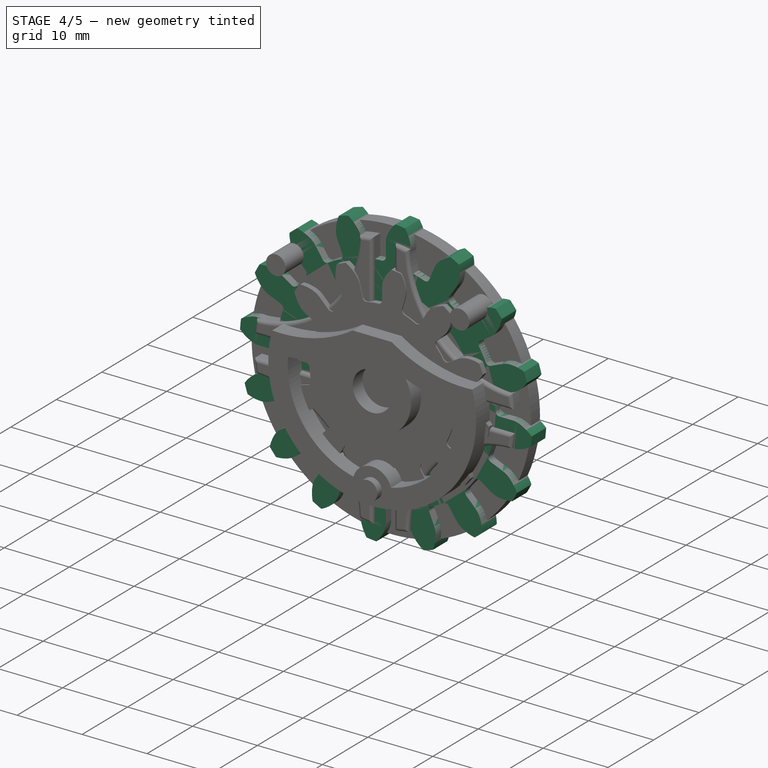
[diagram: stage 4 of 5 — iso view after this stage's code; geometry added in this stage tinted green]
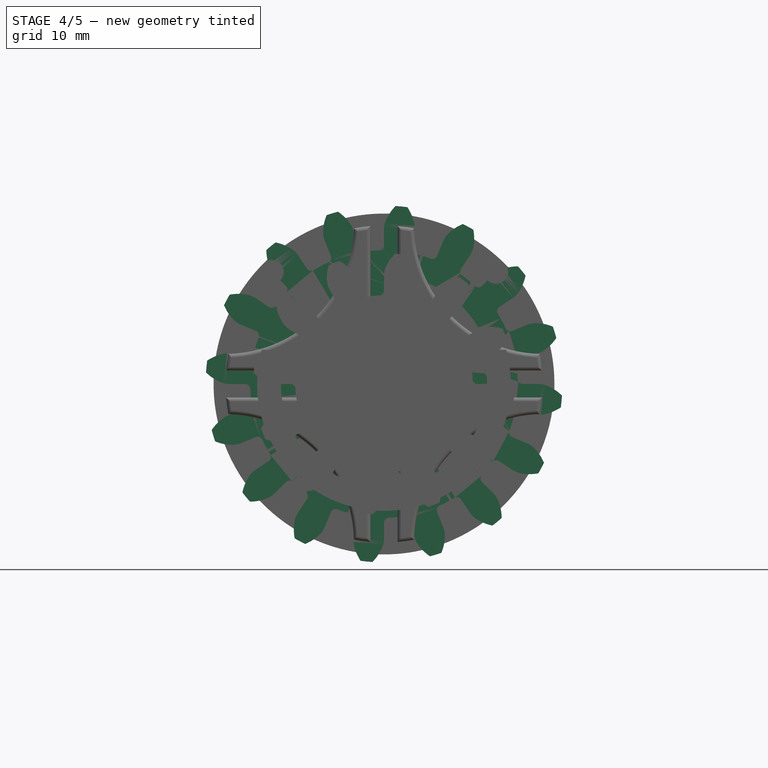
[diagram: stage 4 of 5 — front view after this stage's code; geometry added in this stage tinted green]
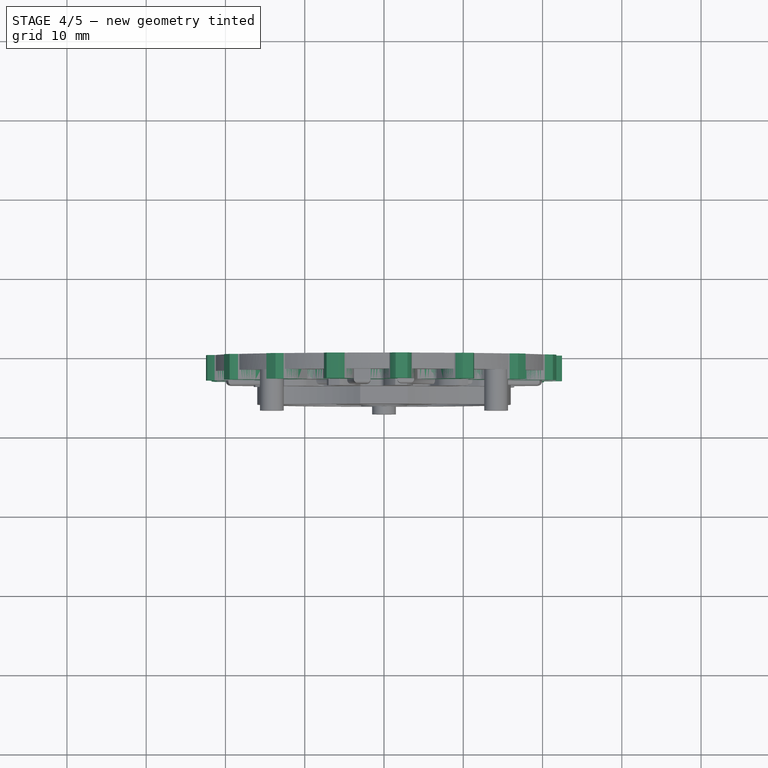
[diagram: stage 4 of 5 — top view after this stage's code; geometry added in this stage tinted green]
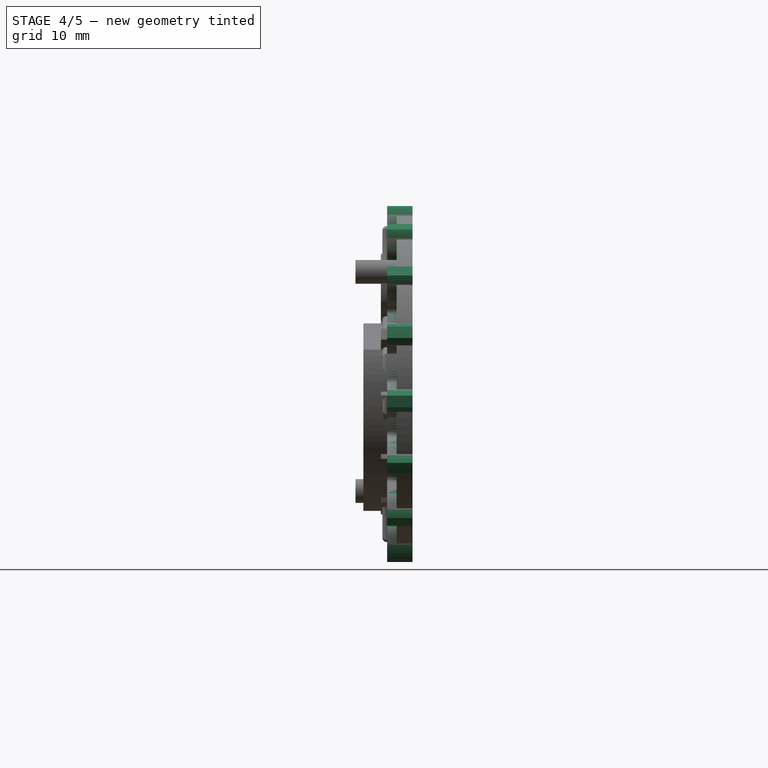
[diagram: stage 4 of 5 — right view after this stage's code; geometry added in this stage tinted green]
FEATURE [Sketcher::SketchObject] Sketch002
  ArcFitTolerance = 1e-06
  AttachmentSupport = -> [XZ_Plane001]
  FullyConstrained = true
  MakeInternals = false
  MapMode = 5
  Placement = pos=(0,0,0) rot=(1,0,0;1.5708rad)
  sketch-geometry (16):
    g0: Circle [constr] CenterX=0 CenterY=0 CenterZ=0 NormalX=0 NormalY=0 NormalZ=1 AngleXU=0 Radius=20
    g1: Circle [constr] CenterX=0 CenterY=28.2843 CenterZ=0 NormalX=0 NormalY=0 NormalZ=1 AngleXU=0 Radius=20
    g2: Circle [constr] CenterX=20 CenterY=20 CenterZ=0 NormalX=0 NormalY=0 NormalZ=1 AngleXU=0 Radius=20
    g3: LineSegment [constr] StartX=0 StartY=28.2843 StartZ=0 EndX=14.1421 EndY=14.1421 EndZ=0
    g4: LineSegment [constr] StartX=0 StartY=0 StartZ=0 EndX=14.1421 EndY=14.1421 EndZ=0
    g5: LineSegment StartX=1.7 StartY=19.9276 StartZ=0 EndX=1.7 EndY=8.28427 EndZ=0
    g6: ArcOfCircle CenterX=0 CenterY=8.28427 CenterZ=0 NormalX=0 NormalY=0 NormalZ=1 AngleXU=0 Radius=1.7 StartAngle=4.71239 EndAngle=6.28319
    g7: LineSegment StartX=19.9276 StartY=1.7 StartZ=0 EndX=8.28427 EndY=1.7 EndZ=0
    g8: ArcOfCircle CenterX=8.28427 CenterY=0 CenterZ=0 NormalX=0 NormalY=0 NormalZ=1 AngleXU=0 Radius=1.7 StartAngle=1.5708 EndAngle=3.14159
    g9: LineSegment [constr] StartX=0 StartY=8.28427 StartZ=0 EndX=8.28427 EndY=0 EndZ=0
    g10: ArcOfCircle CenterX=20 CenterY=20 CenterZ=0 NormalX=0 NormalY=0 NormalZ=1 AngleXU=0 Radius=16.2 StartAngle=3.16413 EndAngle=4.68985
    g11: ArcOfCircle CenterX=0 CenterY=0 CenterZ=0 NormalX=0 NormalY=0 NormalZ=1 AngleXU=0 Radius=20 StartAngle=1.37942 EndAngle=1.48569
    g12: ArcOfCircle CenterX=0 CenterY=0 CenterZ=0 NormalX=0 NormalY=0 NormalZ=1 AngleXU=0 Radius=20 StartAngle=0.0851027 EndAngle=0.191372
    g13: LineSegment StartX=-3e-16 StartY=6.58427 StartZ=0 EndX=0 EndY=28.2843 EndZ=0
    g14: LineSegment StartX=6.58427 StartY=2e-16 StartZ=0 EndX=28.2843 EndY=0 EndZ=0
    g15: LineSegment StartX=0 StartY=28.2843 StartZ=0 EndX=28.2843 EndY=0 EndZ=0
  constraints (45):
    c: Coincident(g0,g-1)
    c: PointOnObject(g1,g-2)
    c: Equal(g1,g2)
    c: Coincident(g3,g1)
    c: PointOnObject(g3,g1)
    c: Coincident(g4,g0)
    c: PointOnObject(g4,g0)
    c: Coincident(g4,g3)
    c: Perpendicular(g4,g3)
    c: Equal(g0,g1)
    c: Radius(g0) = 20
    c: PointOnObject(g5,g0)
    c: Vertical(g5)
    c: PointOnObject(g6,g1)
    c: PointOnObject(g6,g-2)
    c: Tangent(g6,g5) = 1.5708
    c: Diameter(g6) = 3.4
    c: PointOnObject(g7,g0)
    c: Horizontal(g7)
    c: Tangent(g8,g7) = -1.5708
    c: Equal(g8,g6)
    c: Coincident(g9,g6)
    c: Coincident(g9,g8)
    c: Perpendicular(g4,g9)
    c: PointOnObject(g2,g4)
    c: Tangent(g2,g-1)
    c: Coincident(g10,g2)
    c: PointOnObject(g10,g0)
    c: Radius(g10) = 16.2
    c: Coincident(g11,g0)
    c: Coincident(g11,g5)
    c: Horizontal(g11,g10)
    c: Coincident(g12,g0)
    c: Coincident(g12,g10)
    c: Coincident(g12,g7)
    c: PointOnObject(g8,g-1)
    c: PointOnObject(g6,g-2)
    c: PointOnObject(g8,g-1)
    c: Coincident(g13,g6)
    c: Coincident(g14,g8)
    c: PointOnObject(g14,g-1)
    c: Coincident(g15,g13)
    c: Coincident(g15,g14)
    c: Coincident(g13,g1)
    c: Parallel(g15,g3)
FEATURE [Sketcher::SketchObject] Sketch003
  ArcFitTolerance = 1e-06
  AttachmentSupport = -> [XZ_Plane002]
  FullyConstrained = false
  MakeInternals = false
  MapMode = 5
  Placement = pos=(0,0,0) rot=(1,0,0;1.5708rad)
  sketch-geometry (39):
    g0: Circle [constr] CenterX=0 CenterY=0 CenterZ=0 NormalX=0 NormalY=0 NormalZ=1 AngleXU=0 Radius=20
    g1: Circle [constr] CenterX=0 CenterY=30 CenterZ=0 NormalX=0 NormalY=0 NormalZ=1 AngleXU=0 Radius=10
    g2: Circle [constr] CenterX=0 CenterY=0 CenterZ=0 NormalX=0 NormalY=0 NormalZ=1 AngleXU=0 Radius=16.875
    g3: Circle [constr] CenterX=0 CenterY=30 CenterZ=0 NormalX=0 NormalY=0 NormalZ=1 AngleXU=0 Radius=6.875
    g4: LineSegment [constr] StartX=0 StartY=0 StartZ=0 EndX=-20 EndY=0 EndZ=0
    g5: LineSegment [constr] StartX=-10 StartY=30 StartZ=0 EndX=10 EndY=30 EndZ=0
    g6: LineSegment [constr] StartX=20 StartY=0 StartZ=0 EndX=22.5 EndY=0 EndZ=0
    g7: Circle [constr] CenterX=0 CenterY=30 CenterZ=0 NormalX=0 NormalY=0 NormalZ=1 AngleXU=0 Radius=12.5
    g8: LineSegment [constr] StartX=10 StartY=30 StartZ=0 EndX=12.5 EndY=30 EndZ=0
    g9: LineSegment [constr] StartX=20 StartY=0 StartZ=0 EndX=16.875 EndY=0 EndZ=0
    g10: GeomPoint [constr] X=6.875 Y=30 Z=0
    g11: Circle [constr] CenterX=0 CenterY=0 CenterZ=0 NormalX=0 NormalY=0 NormalZ=1 AngleXU=0 Radius=22.5
    g12: LineSegment [constr] StartX=0 StartY=0 StartZ=0 EndX=4.39653 EndY=22.0663 EndZ=0
    g13: LineSegment [constr] StartX=0 StartY=30 StartZ=0 EndX=-4.8132 EndY=18.4638 EndZ=0
    g14: GeomPoint [constr] X=-3.85056 Y=20.7711 Z=0
    g15: GeomPoint [constr] X=0 Y=20 Z=0
    g16: GeomPoint [constr] X=3.90803 Y=19.6145 Z=0
    g17: LineSegment [constr] StartX=0 StartY=0 StartZ=0 EndX=1.6487 EndY=16.7124 EndZ=0
    g18: GeomPoint [constr] X=3.2974 Y=16.5497 Z=0
    g19: GeomPoint [constr] X=0 Y=16.875 Z=0
    g20: LineSegment [constr] StartX=0 StartY=30 StartZ=0 EndX=-1.32363 EndY=23.3901 EndZ=0
    g21: GeomPoint [constr] X=-2.64726 Y=23.6551 Z=0
    g22: GeomPoint [constr] X=0 Y=23.125 Z=0
    g23: ArcOfCircle CenterX=5.57114 CenterY=18.342 CenterZ=0 NormalX=0 NormalY=0 NormalZ=1 AngleXU=0 Radius=5.81262 StartAngle=2.35611 EndAngle=2.85234
    g24: ArcOfCircle CenterX=-1.87969 CenterY=19.0771 CenterZ=0 NormalX=0 NormalY=0 NormalZ=1 AngleXU=0 Radius=5.81262 StartAngle=0.0925878 EndAngle=0.588812
    g25: ArcOfCircle [constr] CenterX=-1.53252 CenterY=19.8039 CenterZ=0 NormalX=0 NormalY=0 NormalZ=1 AngleXU=0 Radius=2.51171 StartAngle=2.74632 EndAngle=3.99416
    g26: ArcOfCircle [constr] CenterX=-2.44477 CenterY=19.9518 CenterZ=0 NormalX=0 NormalY=0 NormalZ=1 AngleXU=0 Radius=2.44525 StartAngle=5.01564 EndAngle=6.30289
    g27: LineSegment StartX=0 StartY=20 StartZ=0 EndX=0 EndY=17.5 EndZ=0
    g28: LineSegment StartX=3.41953 StartY=17.1627 StartZ=0 EndX=3.90803 EndY=19.6145 EndZ=0
    g29: ArcOfCircle CenterX=-0.636574 CenterY=17.5 CenterZ=0 NormalX=0 NormalY=0 NormalZ=1 AngleXU=0 Radius=0.636574 StartAngle=4.74875 EndAngle=6.28319
    g30: ArcOfCircle CenterX=4.04383 CenterY=17.0383 CenterZ=0 NormalX=0 NormalY=0 NormalZ=1 AngleXU=0 Radius=0.636574 StartAngle=2.94493 EndAngle=4.47936
    g31: ArcOfCircle CenterX=1.06e-14 CenterY=-3.37e-14 CenterZ=0 NormalX=0 NormalY=0 NormalZ=1 AngleXU=0 Radius=22.5 StartAngle=1.43912 EndAngle=1.5058
    g32: ArcOfCircle CenterX=1.06e-14 CenterY=-3.37e-14 CenterZ=0 NormalX=0 NormalY=0 NormalZ=1 AngleXU=0 Radius=16.875 StartAngle=1.27592 EndAngle=1.33777
    g33: ArcOfCircle CenterX=1.06e-14 CenterY=-3.37e-14 CenterZ=0 NormalX=0 NormalY=0 NormalZ=1 AngleXU=0 Radius=16.875 StartAngle=1.60716 EndAngle=1.66901
    g34: LineSegment [constr] StartX=0 StartY=0 StartZ=0 EndX=5.81252 EndY=19.1367 EndZ=0
    g35: LineSegment [constr] StartX=0 StartY=0 StartZ=0 EndX=-1.96113 EndY=19.9036 EndZ=0
    g36: LineSegment StartX=4.90432 StartY=16.1466 StartZ=0 EndX=7.81058 EndY=25.715 EndZ=0
    g37: LineSegment StartX=-1.65471 StartY=16.7937 StartZ=0 EndX=-2.63527 EndY=26.7455 EndZ=0
    g38: ArcOfCircle CenterX=0 CenterY=0 CenterZ=0 NormalX=0 NormalY=0 NormalZ=1 AngleXU=0 Radius=26.875 StartAngle=1.27592 EndAngle=1.66901
  constraints (102):
    c: Coincident(g0,g-1)
    c: PointOnObject(g1,g-2)
    c: Coincident(g2,g0)
    c: Coincident(g3,g1)
    c: Coincident(g4,g0)
    c: Horizontal(g4)
    c: PointOnObject(g4,g0)
    c: PointOnObject(g5,g1)
    c: PointOnObject(g5,g1)
    c: Horizontal(g5)
    c: PointOnObject(g1,g5)
    c: Equal(g4,g5)
    c: Diameter(g0) = 40
    c: PointOnObject(g6,g0)
    c: Horizontal(g6)
    c: PointOnObject(g6,g-1)
    c: DistanceX(g6,g6) = 2.5
    c: Coincident(g7,g1)
    c: Coincident(g8,g5)
    c: PointOnObject(g8,g7)
    c: Horizontal(g8)
    c: DistanceX(g8,g8) = 2.5
    c: Coincident(g9,g6)
    c: PointOnObject(g9,g2)
    c: Horizontal(g9)
    c: DistanceX(g9,g9) = 3.125
    c: PointOnObject(g10,g5)
    c: PointOnObject(g10,g3)
    c: DistanceX(g10,g5) = 3.125
    c: Coincident(g11,g0)
    c: PointOnObject(g6,g11)
    c: Coincident(g12,g0)
    c: PointOnObject(g12,g11)
    c: Coincident(g13,g1)
    c: PointOnObject(g13,g7)
    c: PointOnObject(g14,g13)
    c: PointOnObject(g14,g1)
    c: PointOnObject(g15,g0)
    c: PointOnObject(g15,g1)
    c: Distance(g15,g14) = 3.927
    c: PointOnObject(g16,g0)
    c: PointOnObject(g16,g12)
    c: Distance(g16,g15) = 3.927
    c: Coincident(g17,g0)
    c: PointOnObject(g18,g2)
    c: PointOnObject(g18,g12)
    c: PointOnObject(g19,g-2)
    c: PointOnObject(g19,g2)
    c: Symmetric(g19,g18,g17)
    c: Coincident(g20,g1)
    c: PointOnObject(g21,g3)
    c: PointOnObject(g22,g3)
    c: PointOnObject(g21,g13)
    c: PointOnObject(g22,g-2)
    c: Symmetric(g21,g22,g20)
    c: Coincident(g23,g15)
    c: Coincident(g24,g16)
    c: PointOnObject(g24,g11)
    c: Distance(g23,g24) = 1.5
    c: Symmetric(g23,g24,g17)
    c: Equal(g23,g24)
    c: Coincident(g25,g14)
    c: PointOnObject(g25,g7)
    c: Tangent(g25,g13)
    c: Coincident(g26,g15)
    c: Distance(g26,g25) = 1.5
    c: Symmetric(g25,g26,g20)
    c: Coincident(g27,g15)
    c: Coincident(g28,g16)
    c: PointOnObject(g27,g7)
    c: PointOnObject(g27,g-2)
    c: PointOnObject(g28,g12)
    c: Tangent(g29,g2) = 1.5708
    c: Tangent(g29,g27) = 1.5708
    c: Tangent(g30,g28) = 1.5708
    c: Tangent(g30,g2) = 1.5708
    c: Equal(g30,g29)
    c: Coincident(g31,g23)
    c: Coincident(g31,g24)
    c: Coincident(g32,g31)
    c: Coincident(g32,g30)
    c: Coincident(g33,g31)
    c: Coincident(g33,g29)
    c: Coincident(g34,g0)
    c: PointOnObject(g34,g0)
    c: Coincident(g35,g0)
    c: PointOnObject(g35,g0)
    c: PointOnObject(g33,g35)
    c: PointOnObject(g33,g2)
    c: PointOnObject(g32,g34)
    c: Distance(g16,g34) = 1.9635
    c: Distance(g35,g15) = 1.9635
    c: Coincident(g36,g32)
    c: Coincident(g37,g33)
    c: Parallel(g37,g35)
    c: Parallel(g34,g36)
    c: Coincident(g38,g0)
    c: Coincident(g38,g37)
    c: Coincident(g38,g36)
    c: Distance(g36) = 10
    c: PointOnObject(g15,g-2)
    c: PointOnObject(g24,g37)
FEATURE [Sketcher::SketchObject] Sketch004
  ArcFitTolerance = 1e-06
  AttachmentSupport = -> [XZ_Plane002]
  FullyConstrained = true
  MakeInternals = false
  MapMode = 5
  Placement = pos=(0,0,0) rot=(1,0,0;1.5708rad)
  sketch-geometry (1):
    g0: Circle CenterX=0 CenterY=0 CenterZ=0 NormalX=0 NormalY=0 NormalZ=1 AngleXU=0 Radius=22.5
  constraints (2):
    c: Coincident(g0,g-1)
    c: Diameter(g0) = 45
FEATURE [PartDesign::Pad] Pad004
  Direction = (0,-1,2e-16)
  Length = 3.2
  Length2 = 10
  Placement = pos=(0,0,0) rot=(1,0,0;1.5708rad)
  Profile = -> Sketch004
  ReferenceAxis = -> Sketch004 [N_Axis]
  Refine = true
  Suppressed = false
  Type = 0
FEATURE [PartDesign::Pocket] Pocket
  BaseFeature = -> Pad004
  Direction = (0,1,-2e-16)
  Length = 5
  Length2 = 5
  Midplane = true
  Placement = pos=(0,0,0) rot=(1,0,0;1.5708rad)
  Profile = -> Sketch003
  ReferenceAxis = -> Sketch003 [N_Axis]
  Refine = true
  Suppressed = false
  Type = 1
FEATURE [PartDesign::PolarPattern] PolarPattern
  Angle = 360
  Axis = -> Y_Axis002
  BaseFeature = -> Pocket
  Mode = 0
  Occurrences = 16
  Offset = 120
  Originals = -> [Pocket]
  Placement = pos=(0,0,0) rot=(1,0,0;1.5708rad)
  Refine = true
  Suppressed = false
  TransformMode = 0
FEATURE [Sketcher::SketchObject] Sketch023
  ArcFitTolerance = 1e-06
  AttachmentSupport = -> [PolarPattern]
  ExternalGeometry = -> [PolarPattern]
  FullyConstrained = true
  MakeInternals = false
  MapMode = 5
  Placement = pos=(0,-3.2,0) rot=(1,0,0;1.5708rad)
  sketch-geometry (6):
    g0: ArcOfCircle CenterX=3 CenterY=19.4822 CenterZ=0 NormalX=0 NormalY=0 NormalZ=1 AngleXU=0 Radius=3 StartAngle=2.72419 EndAngle=3.14159
    g1: ArcOfCircle CenterX=0.864684 CenterY=19.6929 CenterZ=0 NormalX=0 NormalY=0 NormalZ=1 AngleXU=0 Radius=3 StartAngle=6.08652 EndAngle=6.50392
    g2: LineSegment StartX=3.79189 StartY=20.3497 StartZ=0 EndX=4.58268 EndY=19.7376 EndZ=0
    g3: LineSegment StartX=3.80685 StartY=19.1067 StartZ=0 EndX=4.58268 EndY=19.7376 EndZ=0
    g4: LineSegment StartX=0.257563 StartY=20.6984 StartZ=0 EndX=-0.637583 EndY=20.2526 EndZ=0
    g5: LineSegment StartX=0 StartY=19.4822 StartZ=0 EndX=-0.637583 EndY=20.2526 EndZ=0
  constraints (16):
    c: Tangent(g0,g-3) = -1.5708
    c: Tangent(g0,g-6) = 1.5708
    c: Diameter(g0) = 6
    c: Tangent(g1,g-4) = -1.5708
    c: Tangent(g1,g-5) = 1.5708
    c: Diameter(g1) = 6
    c: Coincident(g2,g1)
    c: Coincident(g3,g1)
    c: Coincident(g3,g2)
    c: Coincident(g4,g0)
    c: Coincident(g5,g0)
    c: Coincident(g5,g4)
    c: Equal(g5,g4)
    c: Equal(g4,g2)
    c: Equal(g2,g3)
    c: Distance(g2) = 1
FEATURE [PartDesign::Pocket] Pocket014
  BaseFeature = -> PolarPattern
  Direction = (0,1,-2e-16)
  Length = 5
  Length2 = 5
  Placement = pos=(0,0,0) rot=(1,0,0;1.5708rad)
  Profile = -> Sketch023
  ReferenceAxis = -> Sketch023 [N_Axis]
  Refine = true
  Suppressed = false
  Type = 1
FEATURE [PartDesign::PolarPattern] PolarPattern005
  Angle = 360
  Axis = -> Sketch023 [N_Axis]
  BaseFeature = -> Pocket014
  Mode = 0
  Occurrences = 16
  Offset = 120
  Originals = -> [Pocket014]
  Placement = pos=(0,0,0) rot=(1,0,0;1.5708rad)
  Refine = true
  Suppressed = false
  TransformMode = 0
FEATURE [Sketcher::SketchObject] Sketch024
  ArcFitTolerance = 1e-06
  AttachmentSupport = -> [XZ_Plane002]
  FullyConstrained = true
  MakeInternals = false
  MapMode = 5
  Placement = pos=(0,0,0) rot=(1,0,0;1.5708rad)
  sketch-geometry (1):
    g0: Circle CenterX=0 CenterY=0 CenterZ=0 NormalX=0 NormalY=0 NormalZ=1 AngleXU=0 Radius=3
  constraints (2):
    c: Coincident(g0,g-1)
    c: Diameter(g0) = 6
FEATURE [PartDesign::Pocket] Pocket015
  BaseFeature = -> PolarPattern005
  Direction = (0,1,-2e-16)
  Length = 5
  Length2 = 5
  Midplane = true
  Placement = pos=(0,0,0) rot=(1,0,0;1.5708rad)
  Profile = -> Sketch024
  ReferenceAxis = -> Sketch024 [N_Axis]
  Refine = true
  Suppressed = false
  Type = 1
FEATURE [Sketcher::SketchObject] Sketch025
  ArcFitTolerance = 1e-06
  AttachmentSupport = -> [Pocket015]
  ExternalGeometry = -> [Pocket015]
  FullyConstrained = true
  MakeInternals = false
  MapMode = 5
  Placement = pos=(0,-3.2,0) rot=(1,0,0;1.5708rad)
  sketch-geometry (9):
    g0: ArcOfCircle CenterX=0 CenterY=0 CenterZ=0 NormalX=0 NormalY=0 NormalZ=1 AngleXU=0 Radius=13.875 StartAngle=0.244864 EndAngle=1.32593
    g1: ArcOfCircle CenterX=0 CenterY=0 CenterZ=0 NormalX=0 NormalY=0 NormalZ=1 AngleXU=0 Radius=6 StartAngle=0.411517 EndAngle=1.15928
    g2: ArcOfCircle CenterX=3 CenterY=6.87386 CenterZ=0 NormalX=0 NormalY=0 NormalZ=1 AngleXU=0 Radius=1.5 StartAngle=3.14159 EndAngle=4.30087
    g3: ArcOfCircle CenterX=6.87386 CenterY=3 CenterZ=0 NormalX=0 NormalY=0 NormalZ=1 AngleXU=0 Radius=1.5 StartAngle=3.55311 EndAngle=4.71239
    g4: ArcOfCircle CenterX=3 CenterY=12.0059 CenterZ=0 NormalX=0 NormalY=0 NormalZ=1 AngleXU=0 Radius=1.5 StartAngle=1.32593 EndAngle=3.14159
    g5: ArcOfCircle CenterX=12.0059 CenterY=3 CenterZ=0 NormalX=0 NormalY=0 NormalZ=1 AngleXU=0 Radius=1.5 StartAngle=4.71239 EndAngle=6.52805
    g6: LineSegment StartX=1.5 StartY=12.0059 StartZ=0 EndX=1.5 EndY=6.87386 EndZ=0
    g7: LineSegment StartX=6.87386 StartY=1.5 StartZ=0 EndX=12.0059 EndY=1.5 EndZ=0
    g8: LineSegment [constr] StartX=10.7049 StartY=13.045 StartZ=0 EndX=8.80178 EndY=10.7259 EndZ=0
  constraints (23):
    c: Coincident(g0,g-1)
    c: Coincident(g1,g0)
    c: Vertical(g6)
    c: Horizontal(g7)
    c: Tangent(g7,g3) = -1.5708
    c: Diameter(g1) = 12
    c: Tangent(g2,g1) = 1.5708
    c: Tangent(g6,g2) = -1.5708
    c: Tangent(g6,g4) = -1.5708
    c: Tangent(g4,g0) = -1.5708
    c: Tangent(g5,g0) = -1.5708
    c: Tangent(g7,g5) = -1.5708
    c: Equal(g5,g4)
    c: Equal(g4,g2)
    c: Equal(g2,g3)
    c: Diameter(g4) = 3
    c: Coincident(g8,g-3)
    c: PointOnObject(g8,g0)
    c: Perpendicular(g0,g8)
    c: Distance(g8) = 3
    c: DistanceX(g0,g2) = 1.5
    c: DistanceY(g0,g3) = 1.5
    c: Tangent(g3,g1) = 1.5708
FEATURE [PartDesign::Pocket] Pocket016
  BaseFeature = -> Pocket015
  Direction = (0,1,-2e-16)
  Length = 5
  Length2 = 5
  Placement = pos=(0,0,0) rot=(1,0,0;1.5708rad)
  Profile = -> Sketch025
  ReferenceAxis = -> Sketch025 [N_Axis]
  Refine = true
  Suppressed = false
  Type = 0
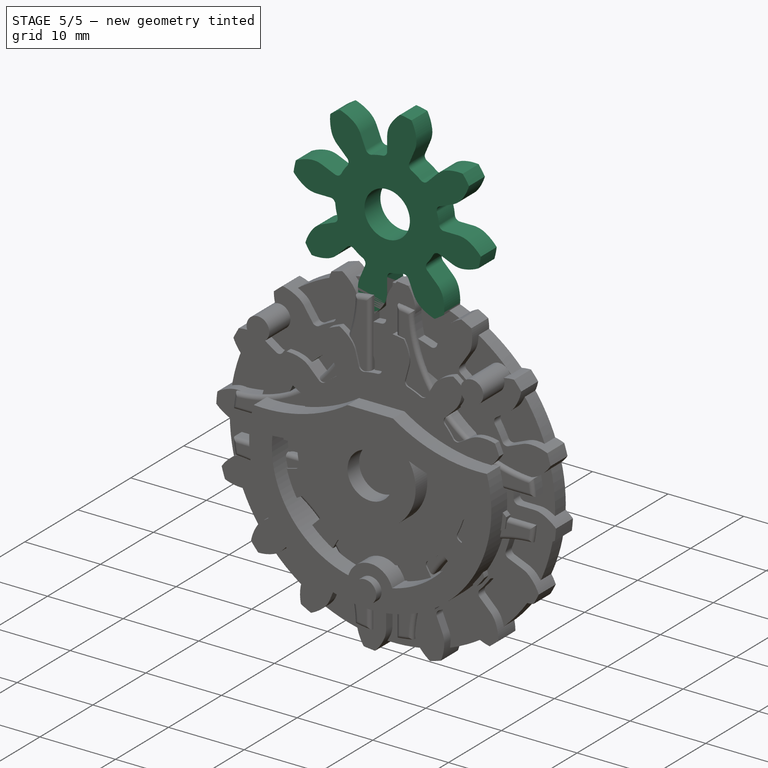
[diagram: stage 5 of 5 — iso view after this stage's code; geometry added in this stage tinted green]
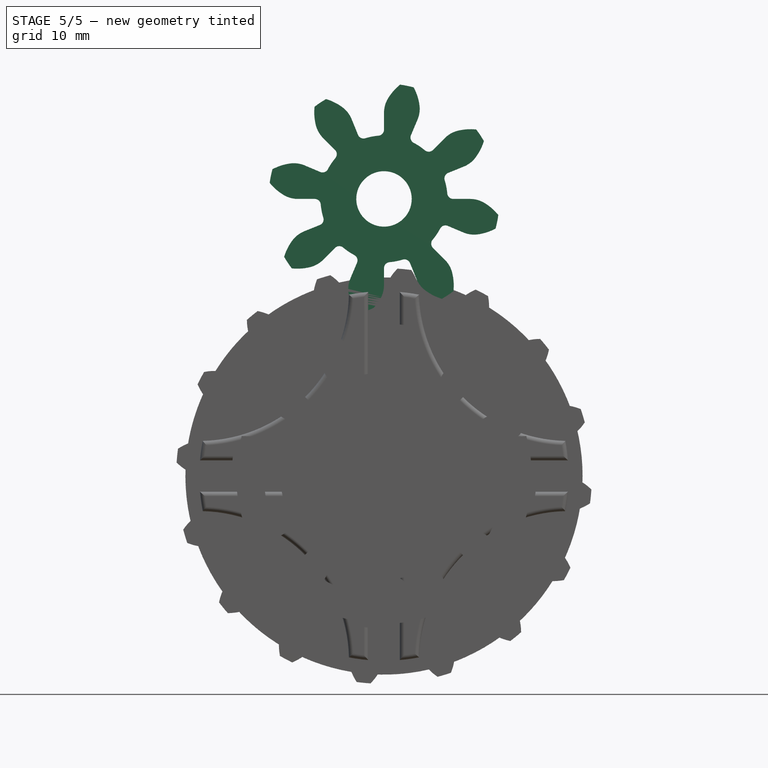
[diagram: stage 5 of 5 — front view after this stage's code; geometry added in this stage tinted green]
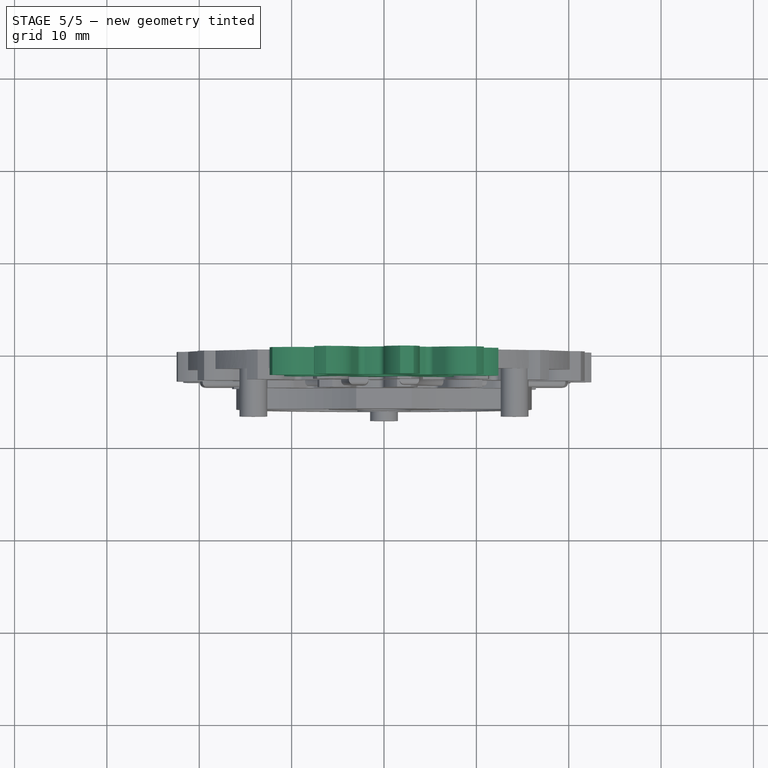
[diagram: stage 5 of 5 — top view after this stage's code; geometry added in this stage tinted green]
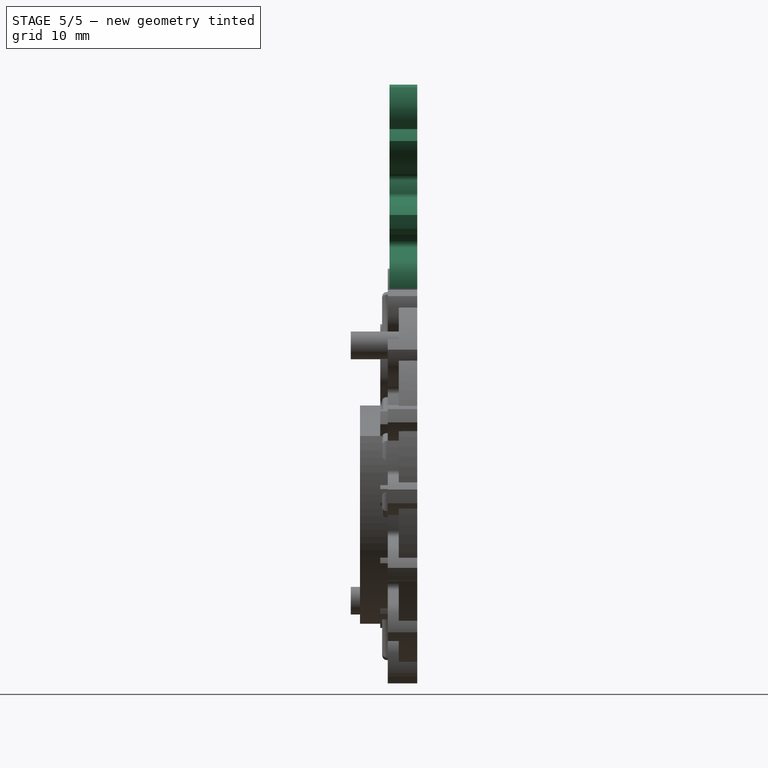
[diagram: stage 5 of 5 — right view after this stage's code; geometry added in this stage tinted green]
FEATURE [Sketcher::SketchObject] Sketch005
  ArcFitTolerance = 1e-06
  AttachmentSupport = -> [XZ_Plane003]
  FullyConstrained = false
  MakeInternals = false
  MapMode = 5
  Placement = pos=(0,0,0) rot=(1,0,0;1.5708rad)
  sketch-geometry (44):
    g0: Circle [constr] CenterX=0 CenterY=0 CenterZ=0 NormalX=0 NormalY=0 NormalZ=1 AngleXU=0 Radius=20
    g1: Circle [constr] CenterX=0 CenterY=30 CenterZ=0 NormalX=0 NormalY=0 NormalZ=1 AngleXU=0 Radius=10
    g2: Circle [constr] CenterX=0 CenterY=0 CenterZ=0 NormalX=0 NormalY=0 NormalZ=1 AngleXU=0 Radius=16.875
    g3: Circle [constr] CenterX=0 CenterY=30 CenterZ=0 NormalX=0 NormalY=0 NormalZ=1 AngleXU=0 Radius=6.875
    g4: LineSegment [constr] StartX=0 StartY=0 StartZ=0 EndX=-20 EndY=0 EndZ=0
    g5: LineSegment [constr] StartX=-10 StartY=30 StartZ=0 EndX=10 EndY=30 EndZ=0
    g6: LineSegment [constr] StartX=20 StartY=0 StartZ=0 EndX=22.5 EndY=0 EndZ=0
    g7: Circle [constr] CenterX=0 CenterY=30 CenterZ=0 NormalX=0 NormalY=0 NormalZ=1 AngleXU=0 Radius=12.5
    g8: LineSegment [constr] StartX=10 StartY=30 StartZ=0 EndX=12.5 EndY=30 EndZ=0
    g9: LineSegment [constr] StartX=20 StartY=0 StartZ=0 EndX=16.875 EndY=0 EndZ=0
    g10: GeomPoint [constr] X=6.875 Y=30 Z=0
    g11: Circle [constr] CenterX=0 CenterY=0 CenterZ=0 NormalX=0 NormalY=0 NormalZ=1 AngleXU=0 Radius=22.5
    g12: LineSegment [constr] StartX=0 StartY=0 StartZ=0 EndX=4.39653 EndY=22.0663 EndZ=0
    g13: LineSegment [constr] StartX=0 StartY=30 StartZ=0 EndX=-4.86767 EndY=18.4867 EndZ=0
    g14: GeomPoint [constr] X=-3.89413 Y=20.7894 Z=0
    g15: GeomPoint [constr] X=0 Y=20 Z=0
    g16: GeomPoint [constr] X=3.90803 Y=19.6145 Z=0
    g17: LineSegment [constr] StartX=0 StartY=0 StartZ=0 EndX=1.6487 EndY=16.7124 EndZ=0
    g18: GeomPoint [constr] X=3.2974 Y=16.5497 Z=0
    g19: GeomPoint [constr] X=0 Y=16.875 Z=0
    g20: LineSegment [constr] StartX=0 StartY=30 StartZ=0 EndX=-1.33861 EndY=23.3963 EndZ=0
    g21: GeomPoint [constr] X=-2.67722 Y=23.6677 Z=0
    g22: GeomPoint [constr] X=0 Y=23.125 Z=0
    g23: ArcOfCircle [constr] CenterX=3.30349 CenterY=19.6932 CenterZ=0 NormalX=0 NormalY=0 NormalZ=1 AngleXU=0 Radius=3.3177 StartAngle=2.15946 EndAngle=3.04899
    g24: ArcOfCircle [constr] CenterX=0.608275 CenterY=19.9591 CenterZ=0 NormalX=0 NormalY=0 NormalZ=1 AngleXU=0 Radius=3.3177 StartAngle=6.17912 EndAngle=7.06865
    g25: ArcOfCircle CenterX=1.865 CenterY=20.6396 CenterZ=0 NormalX=0 NormalY=0 NormalZ=1 AngleXU=0 Radius=5.76108 StartAngle=3.11559 EndAngle=3.63317
    g26: ArcOfCircle CenterX=-5.36286 CenterY=22.1047 CenterZ=0 NormalX=0 NormalY=0 NormalZ=1 AngleXU=0 Radius=5.76108 StartAngle=5.39161 EndAngle=5.9092
    g27: LineSegment [constr] StartX=0 StartY=20 StartZ=0 EndX=0 EndY=16.875 EndZ=0
    g28: LineSegment [constr] StartX=3.2974 StartY=16.5497 StartZ=0 EndX=3.90803 EndY=19.6145 EndZ=0
    g29: LineSegment [constr] StartX=0 StartY=0 StartZ=0 EndX=5.81252 EndY=19.1367 EndZ=0
    g30: LineSegment [constr] StartX=0 StartY=0 StartZ=0 EndX=-1.96113 EndY=19.9036 EndZ=0
    g31: LineSegment StartX=-3.89413 StartY=20.7894 StartZ=0 EndX=-2.9206 EndY=23.092 EndZ=0
    g32: LineSegment StartX=0 StartY=20 StartZ=0 EndX=0 EndY=22.5 EndZ=0
    g33: ArcOfCircle CenterX=-3.52243 CenterY=23.3465 CenterZ=0 NormalX=0 NormalY=0 NormalZ=1 AngleXU=0 Radius=0.653409 StartAngle=5.88319 EndAngle=7.36709
    g34: ArcOfCircle CenterX=0.653409 CenterY=22.5 CenterZ=0 NormalX=0 NormalY=0 NormalZ=1 AngleXU=0 Radius=0.653409 StartAngle=1.6577 EndAngle=3.14159
    g35: ArcOfCircle CenterX=-9.1e-15 CenterY=30 CenterZ=0 NormalX=0 NormalY=0 NormalZ=1 AngleXU=0 Radius=12.5 StartAngle=4.45236 EndAngle=4.57243
    g36: ArcOfCircle CenterX=-9.1e-15 CenterY=30 CenterZ=0 NormalX=0 NormalY=0 NormalZ=1 AngleXU=0 Radius=6.875 StartAngle=4.11573 EndAngle=4.22549
    g37: ArcOfCircle CenterX=-9.1e-15 CenterY=30 CenterZ=0 NormalX=0 NormalY=0 NormalZ=1 AngleXU=0 Radius=6.875 StartAngle=4.79929 EndAngle=4.90906
    g38: LineSegment [constr] StartX=0 StartY=30 StartZ=0 EndX=6.6204 EndY=22.5053 EndZ=0
    g39: LineSegment [constr] StartX=-5.61884 StartY=21.7278 StartZ=0 EndX=0 EndY=30 EndZ=0
    g40: LineSegment [constr] StartX=0 StartY=30 StartZ=0 EndX=1.95401 EndY=20.1928 EndZ=0
    g41: LineSegment StartX=-3.86295 StartY=24.3129 StartZ=0 EndX=-9.48179 EndY=16.0407 EndZ=0
    g42: LineSegment StartX=1.34339 StartY=23.2575 StartZ=0 EndX=3.2974 EndY=13.4503 EndZ=0
    g43: ArcOfCircle CenterX=0 CenterY=30 CenterZ=0 NormalX=0 NormalY=0 NormalZ=1 AngleXU=0 Radius=16.875 StartAngle=4.11573 EndAngle=4.90906
  constraints (114):
    c: Coincident(g0,g-1)
    c: PointOnObject(g1,g-2)
    c: Coincident(g2,g0)
    c: Coincident(g3,g1)
    c: Coincident(g4,g0)
    c: Horizontal(g4)
    c: PointOnObject(g4,g0)
    c: PointOnObject(g5,g1)
    c: PointOnObject(g5,g1)
    c: Horizontal(g5)
    c: PointOnObject(g1,g5)
    c: Equal(g4,g5)
    c: Diameter(g0) = 40
    c: PointOnObject(g6,g0)
    c: Horizontal(g6)
    c: PointOnObject(g6,g-1)
    c: DistanceX(g6,g6) = 2.5
    c: Coincident(g7,g1)
    c: Coincident(g8,g5)
    c: PointOnObject(g8,g7)
    c: Horizontal(g8)
    c: DistanceX(g8,g8) = 2.5
    c: Coincident(g9,g6)
    c: PointOnObject(g9,g2)
    c: Horizontal(g9)
    c: DistanceX(g9,g9) = 3.125
    c: PointOnObject(g10,g5)
    c: PointOnObject(g10,g3)
    c: DistanceX(g10,g5) = 3.125
    c: Coincident(g11,g0)
    c: PointOnObject(g6,g11)
    c: Coincident(g12,g0)
    c: PointOnObject(g12,g11)
    c: Coincident(g13,g1)
    c: PointOnObject(g13,g7)
    c: PointOnObject(g14,g13)
    c: PointOnObject(g14,g1)
    c: PointOnObject(g15,g0)
    c: PointOnObject(g15,g1)
    c: PointOnObject(g16,g0)
    c: PointOnObject(g16,g12)
    c: Distance(g16,g15) = 3.927
    c: Coincident(g17,g0)
    c: PointOnObject(g18,g2)
    c: PointOnObject(g18,g12)
    c: PointOnObject(g19,g-2)
    c: PointOnObject(g19,g2)
    c: Symmetric(g19,g18,g17)
    c: Coincident(g20,g1)
    c: PointOnObject(g21,g3)
    c: PointOnObject(g22,g3)
    c: PointOnObject(g21,g13)
    c: PointOnObject(g22,g-2)
    c: Symmetric(g21,g22,g20)
    c: Coincident(g23,g15)
    c: Coincident(g24,g16)
    c: PointOnObject(g24,g11)
    c: Distance(g23,g24) = 1.5
    c: Symmetric(g23,g24,g17)
    c: Equal(g23,g24)
    c: Coincident(g25,g14)
    c: PointOnObject(g25,g7)
    c: Coincident(g26,g15)
    c: Distance(g26,g25) = 1.5
    c: Symmetric(g25,g26,g20)
    c: Coincident(g27,g15)
    c: Coincident(g28,g16)
    c: Coincident(g29,g0)
    c: PointOnObject(g29,g0)
    c: Coincident(g30,g0)
    c: PointOnObject(g30,g0)
    c: Distance(g16,g29) = 1.9635
    c: Distance(g30,g15) = 1.9635
    c: Coincident(g27,g19)
    c: Coincident(g28,g18)
    c: Coincident(g31,g14)
    c: PointOnObject(g31,g13)
    c: Vertical(g32)
    c: Tangent(g33,g3) = 1.5708
    c: Tangent(g34,g3) = 1.5708
    c: Tangent(g33,g31) = -1.5708
    c: Tangent(g34,g32) = 1.5708
    c: PointOnObject(g32,g11)
    c: Equal(g33,g34)
    c: Coincident(g32,g15)
    c: Coincident(g35,g25)
    c: Coincident(g35,g26)
    c: Coincident(g36,g35)
    c: Coincident(g37,g35)
    c: Coincident(g36,g33)
    c: Coincident(g37,g34)
    c: Coincident(g38,g1)
    c: PointOnObject(g38,g1)
    c: PointOnObject(g39,g1)
    c: Coincident(g39,g1)
    c: Distance(g14,g39) = 1.9635
    c: PointOnObject(g36,g39)
    c: PointOnObject(g36,g3)
    c: Coincident(g40,g1)
    c: PointOnObject(g40,g1)
    c: Distance(g40,g15) = 1.9635
    c: PointOnObject(g37,g40)
    c: Coincident(g41,g36)
    c: Parallel(g41,g39)
    c: Coincident(g42,g37)
    c: Parallel(g42,g40)
    c: Coincident(g43,g1)
    c: Coincident(g43,g41)
    c: Coincident(g43,g42)
    c: Distance(g42) = 10
    c: Angle(g13,g-2) = 0.399995
    c: PointOnObject(g15,g-2)
    c: PointOnObject(g25,g42)
    c: Equal(g26,g25)
FEATURE [Sketcher::SketchObject] Sketch006
  ArcFitTolerance = 1e-06
  AttachmentSupport = -> [XZ_Plane003]
  FullyConstrained = true
  MakeInternals = false
  MapMode = 5
  Placement = pos=(0,0,0) rot=(1,0,0;1.5708rad)
  sketch-geometry (1):
    g0: Circle CenterX=0 CenterY=30 CenterZ=0 NormalX=0 NormalY=0 NormalZ=1 AngleXU=0 Radius=12.5
  constraints (3):
    c: DistanceY(g-1,g0) = 30
    c: PointOnObject(g0,g-2)
    c: Diameter(g0) = 25
FEATURE [PartDesign::Pad] Pad005
  Direction = (0,-1,2e-16)
  Length = 3
  Length2 = 10
  Placement = pos=(0,0,0) rot=(1,0,0;1.5708rad)
  Profile = -> Sketch006
  ReferenceAxis = -> Sketch006 [N_Axis]
  Refine = true
  Suppressed = false
  Type = 0
FEATURE [PartDesign::Pocket] Pocket001
  BaseFeature = -> Pad005
  Direction = (0,1,-2e-16)
  Length = 5
  Length2 = 5
  Midplane = true
  Placement = pos=(0,0,0) rot=(1,0,0;1.5708rad)
  Profile = -> Sketch005
  ReferenceAxis = -> Sketch005 [N_Axis]
  Refine = true
  Suppressed = false
  Type = 1
FEATURE [PartDesign::PolarPattern] PolarPattern001
  Angle = 360
  Axis = -> Pocket001 [Edge24]
  BaseFeature = -> Pocket001
  Mode = 0
  Occurrences = 8
  Offset = 120
  Originals = -> [Pocket001]
  Placement = pos=(0,0,0) rot=(1,0,0;1.5708rad)
  Refine = true
  Suppressed = false
  TransformMode = 0
FEATURE [Sketcher::SketchObject] Sketch007
  ArcFitTolerance = 1e-06
  AttachmentSupport = -> [PolarPattern001]
  ExternalGeometry = -> [PolarPattern001]
  FullyConstrained = true
  MakeInternals = false
  MapMode = 5
  Placement = pos=(0,-3,0) rot=(1,0,0;1.5708rad)
  sketch-geometry (6):
    g0: ArcOfCircle CenterX=-0.867601 CenterY=20.244 CenterZ=0 NormalX=0 NormalY=0 NormalZ=1 AngleXU=0 Radius=3 StartAngle=2.7416 EndAngle=3.28535
    g1: ArcOfCircle CenterX=-3 CenterY=20.6763 CenterZ=0 NormalX=0 NormalY=0 NormalZ=1 AngleXU=0 Radius=3 StartAngle=5.73944 EndAngle=6.28319
    g2: LineSegment StartX=-3.83666 StartY=19.8142 StartZ=0 EndX=-4.32131 EndY=20.6889 EndZ=0
    g3: LineSegment StartX=-3.63079 StartY=21.4122 StartZ=0 EndX=-4.32131 EndY=20.6889 EndZ=0
    g4: LineSegment StartX=0 StartY=20.6763 StartZ=0 EndX=0.354341 EndY=19.7411 EndZ=0
    g5: LineSegment StartX=-0.432676 StartY=19.1242 StartZ=0 EndX=0.354341 EndY=19.7411 EndZ=0
  constraints (16):
    c: Tangent(g0,g-3) = -1.5708
    c: Tangent(g0,g-5) = -1.5708
    c: Tangent(g1,g-6) = 1.5708
    c: Tangent(g1,g-4) = -1.5708
    c: Diameter(g0) = 6
    c: Equal(g1,g0)
    c: Coincident(g2,g0)
    c: Coincident(g3,g0)
    c: Coincident(g3,g2)
    c: Coincident(g4,g1)
    c: Coincident(g5,g1)
    c: Coincident(g5,g4)
    c: Equal(g5,g2)
    c: Equal(g2,g3)
    c: Equal(g3,g4)
    c: Distance(g4) = 1
FEATURE [PartDesign::Pocket] Pocket002
  BaseFeature = -> PolarPattern001
  Direction = (0,1,-2e-16)
  Length = 5
  Length2 = 5
  Midplane = true
  Placement = pos=(0,0,0) rot=(1,0,0;1.5708rad)
  Profile = -> Sketch007
  ReferenceAxis = -> Sketch007 [N_Axis]
  Refine = true
  Suppressed = false
  Type = 1
FEATURE [PartDesign::PolarPattern] PolarPattern002
  Angle = 360
  Axis = -> Pocket002 [Edge203]
  BaseFeature = -> Pocket002
  Mode = 0
  Occurrences = 8
  Offset = 120
  Originals = -> [Pocket002]
  Placement = pos=(0,0,0) rot=(1,0,0;1.5708rad)
  Refine = true
  Suppressed = false
  TransformMode = 0
FEATURE [Sketcher::SketchObject] Sketch009
  ArcFitTolerance = 1e-06
  AttachmentSupport = -> [PolarPattern002]
  FullyConstrained = true
  MakeInternals = false
  MapMode = 5
  Placement = pos=(0,-3,0) rot=(1,0,0;1.5708rad)
  sketch-geometry (1):
    g0: Circle CenterX=0 CenterY=30 CenterZ=0 NormalX=0 NormalY=0 NormalZ=1 AngleXU=0 Radius=3
  constraints (3):
    c: PointOnObject(g0,g-2)
    c: DistanceY(g-1,g0) = 30
    c: Diameter(g0) = 6
FEATURE [PartDesign::Pocket] Pocket004
  BaseFeature = -> PolarPattern002
  Direction = (0,1,-2e-16)
  Length = 5
  Length2 = 5
  Midplane = true
  Placement = pos=(0,0,0) rot=(1,0,0;1.5708rad)
  Profile = -> Sketch009
  ReferenceAxis = -> Sketch009 [N_Axis]
  Refine = true
  Suppressed = false
  Type = 1
FEATURE [PartDesign::PolarPattern] PolarPattern006
  Angle = 360
  Axis = -> Sketch025 [N_Axis]
  BaseFeature = -> Pocket016
  Mode = 0
  Occurrences = 4
  Offset = 120
  Originals = -> [Pocket016]
  Placement = pos=(0,0,0) rot=(1,0,0;1.5708rad)
  Refine = true
  Suppressed = false
  TransformMode = 0
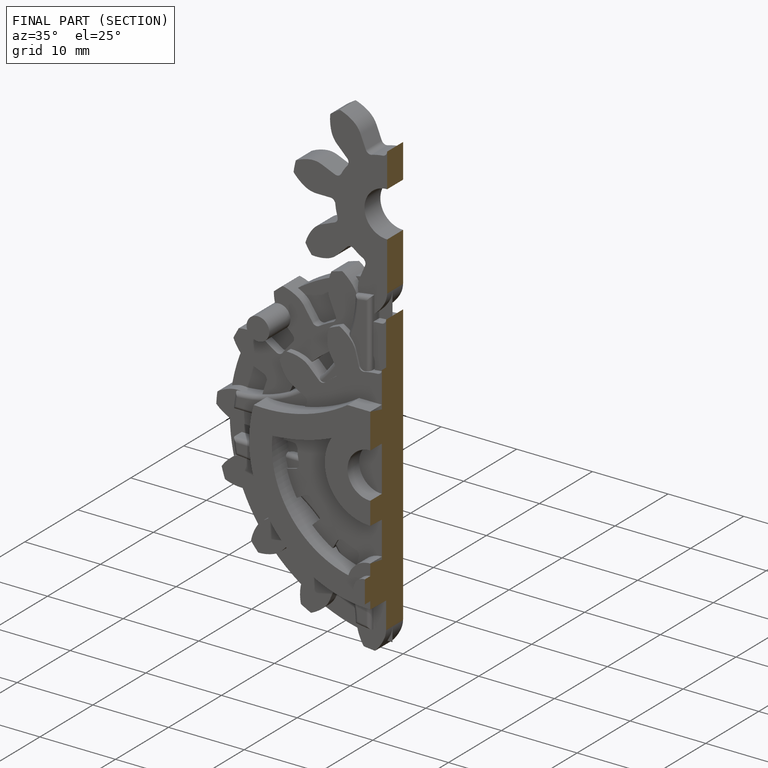
[diagram: finished part — half-section view (interior)]
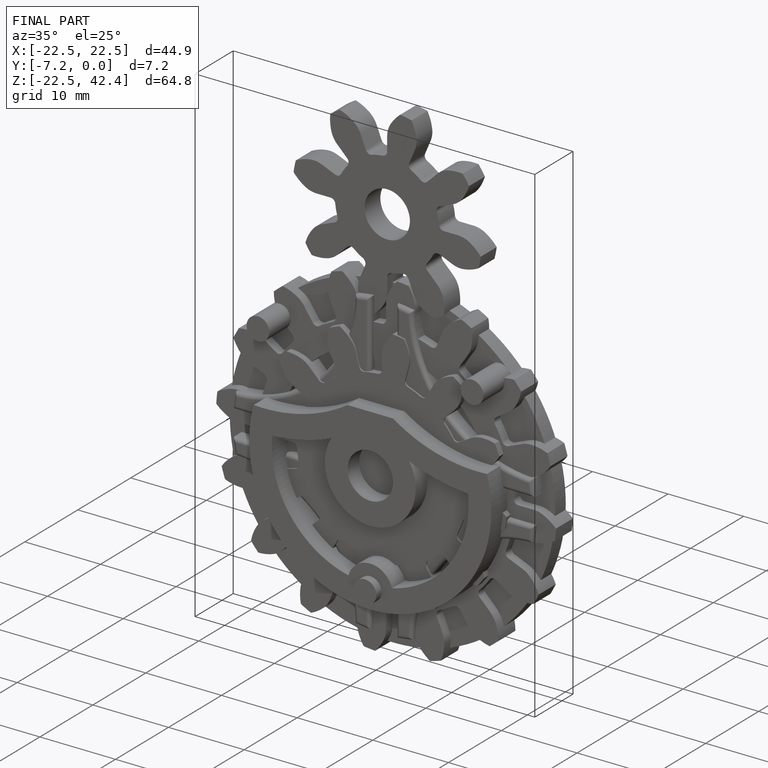
[diagram: finished part — iso view with bounding-box wireframe]
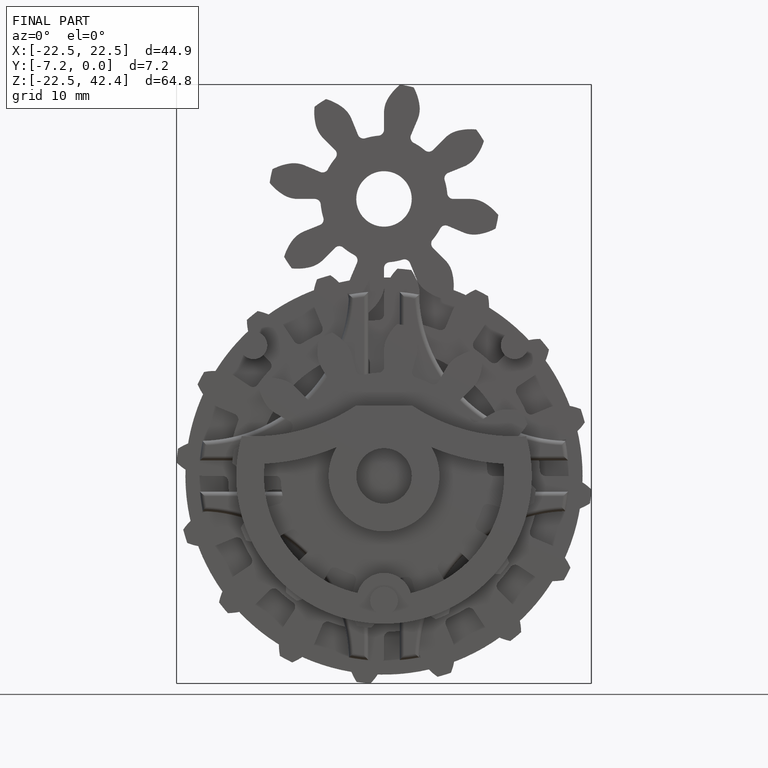
[diagram: finished part — front view with bounding-box wireframe]
